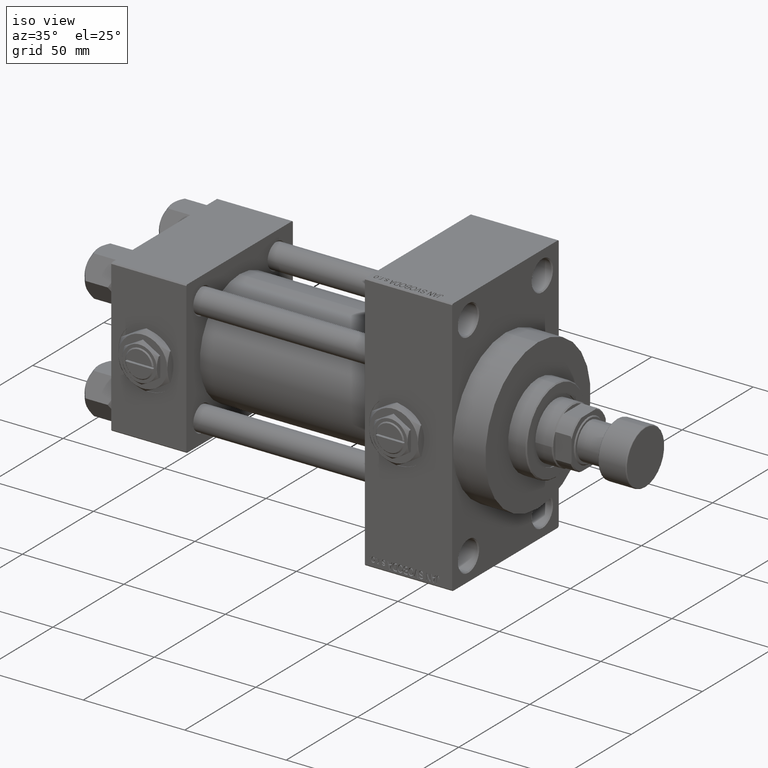
[diagram: clean part render]
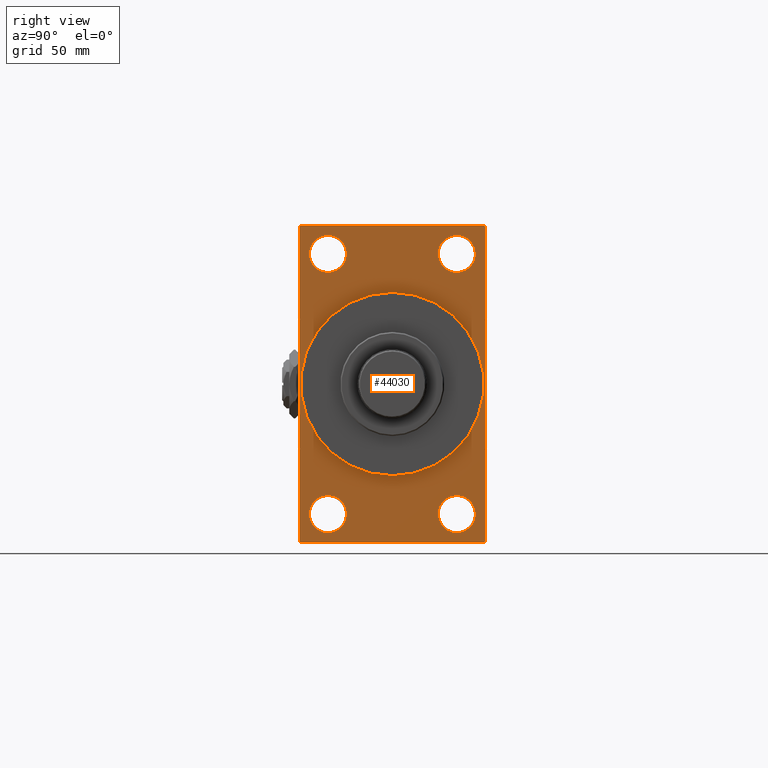
[diagram: tour spotlight — one face highlighted and labeled with its STEP entity id]
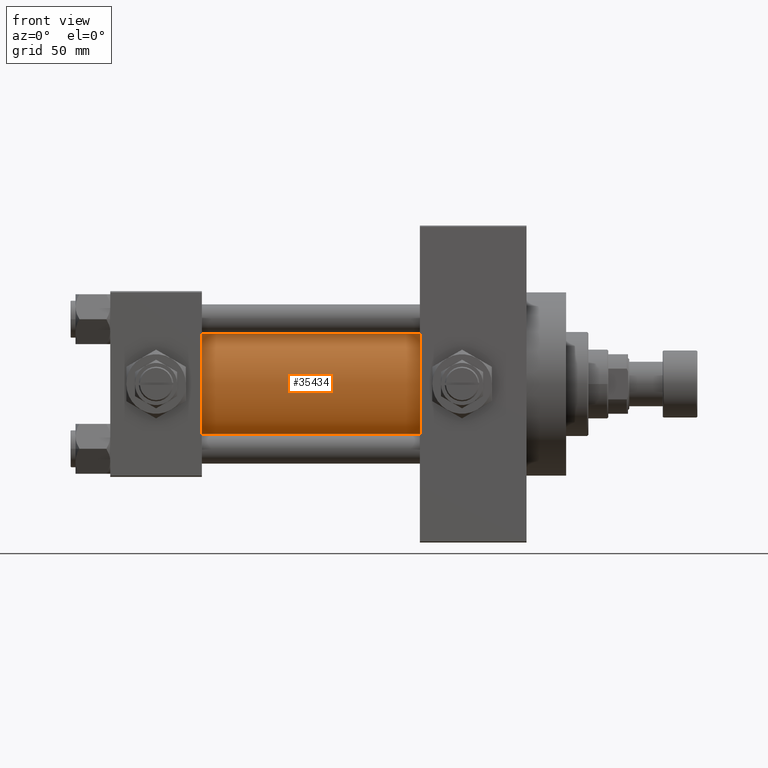
[diagram: tour spotlight — one face highlighted and labeled with its STEP entity id]
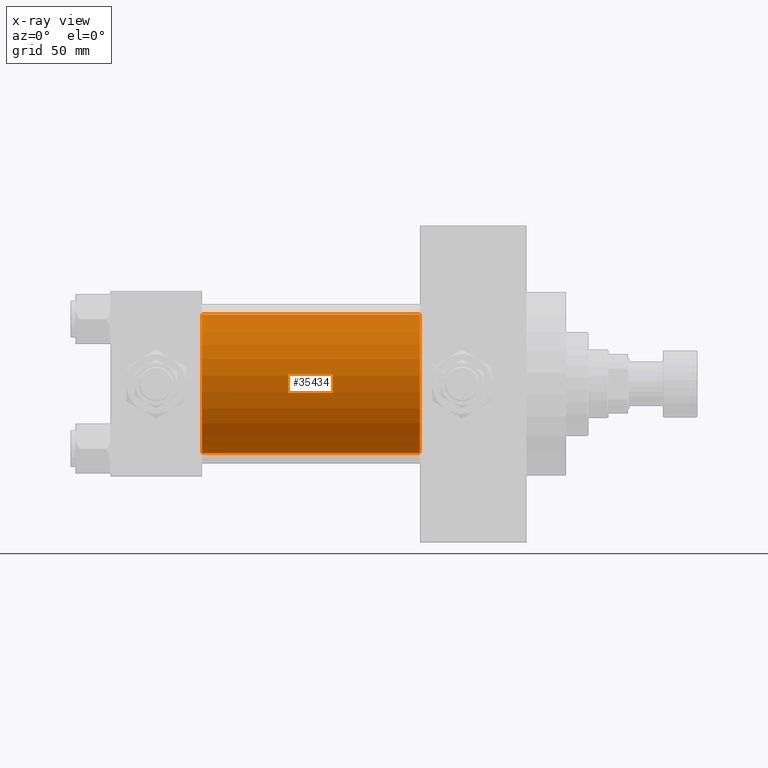
[diagram: x-ray of the same camera — body ghosted, this tour face saturated]
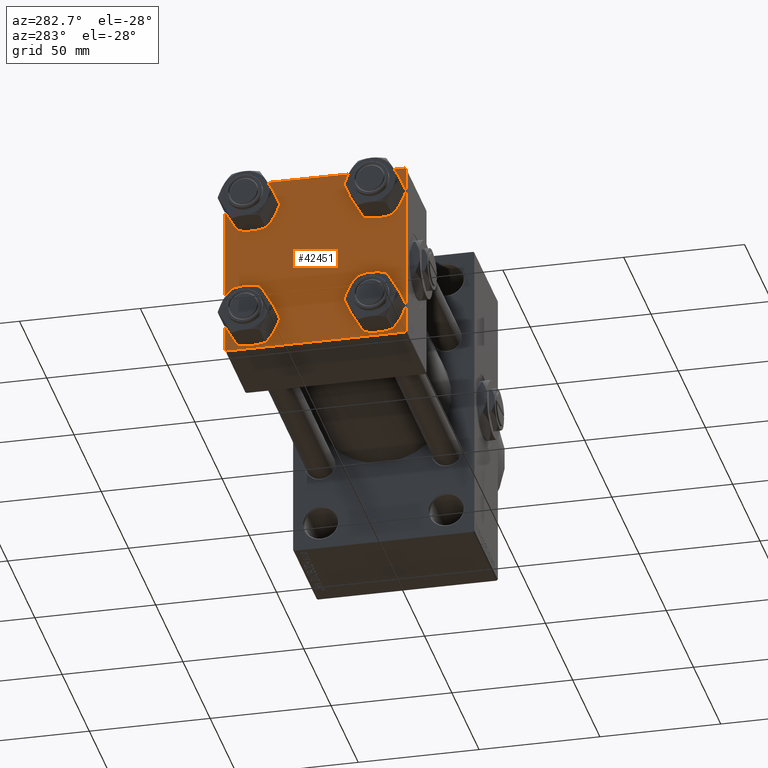
[diagram: tour spotlight — one face highlighted and labeled with its STEP entity id]
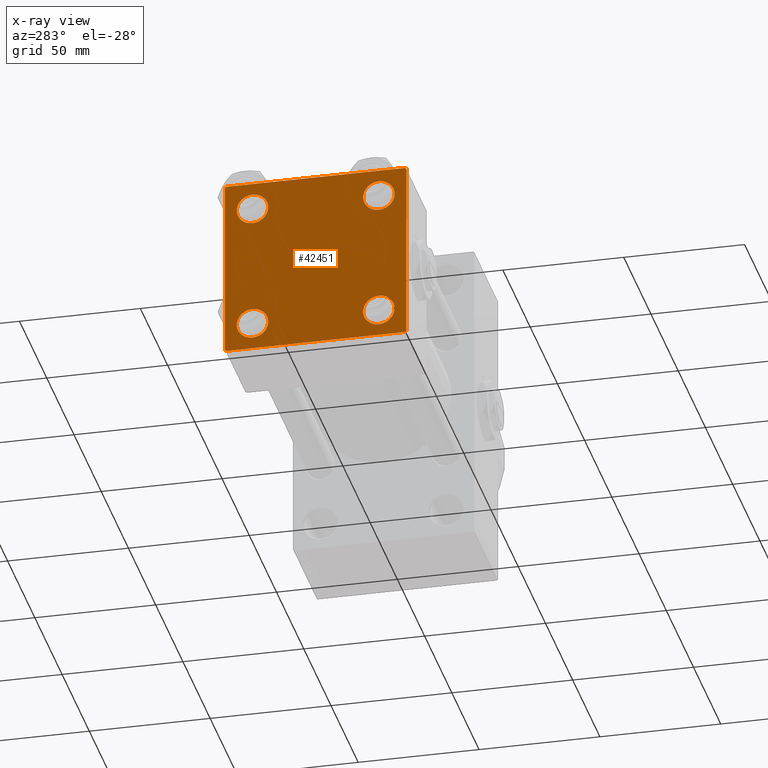
[diagram: x-ray of the same camera — body ghosted, this tour face saturated]
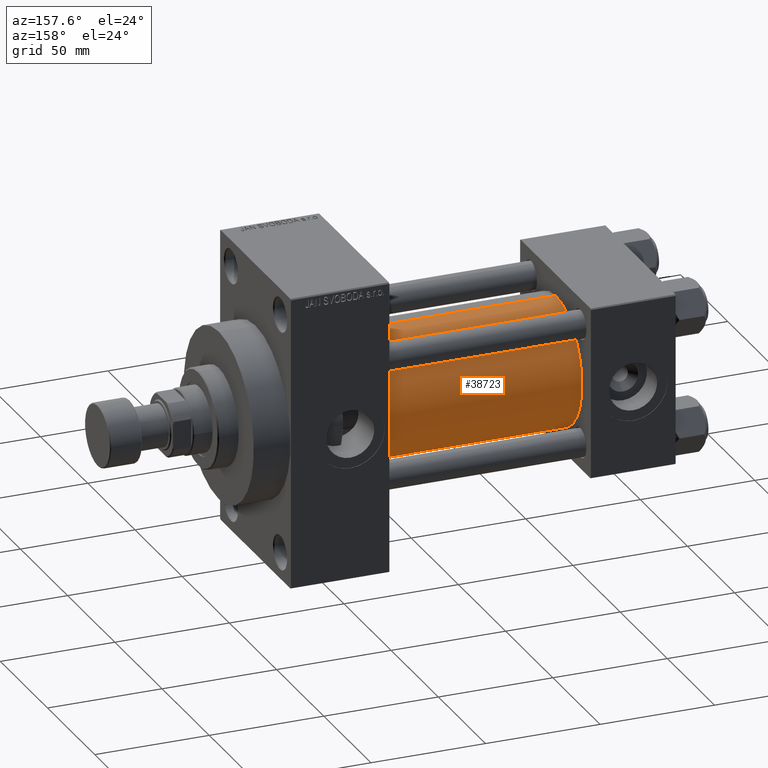
[diagram: tour spotlight — one face highlighted and labeled with its STEP entity id]
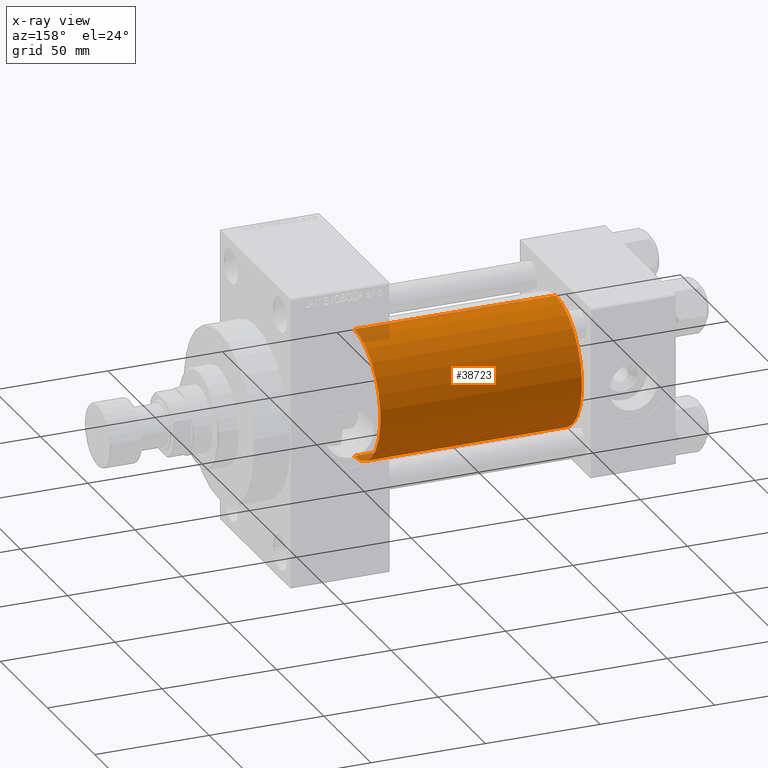
[diagram: x-ray of the same camera — body ghosted, this tour face saturated]
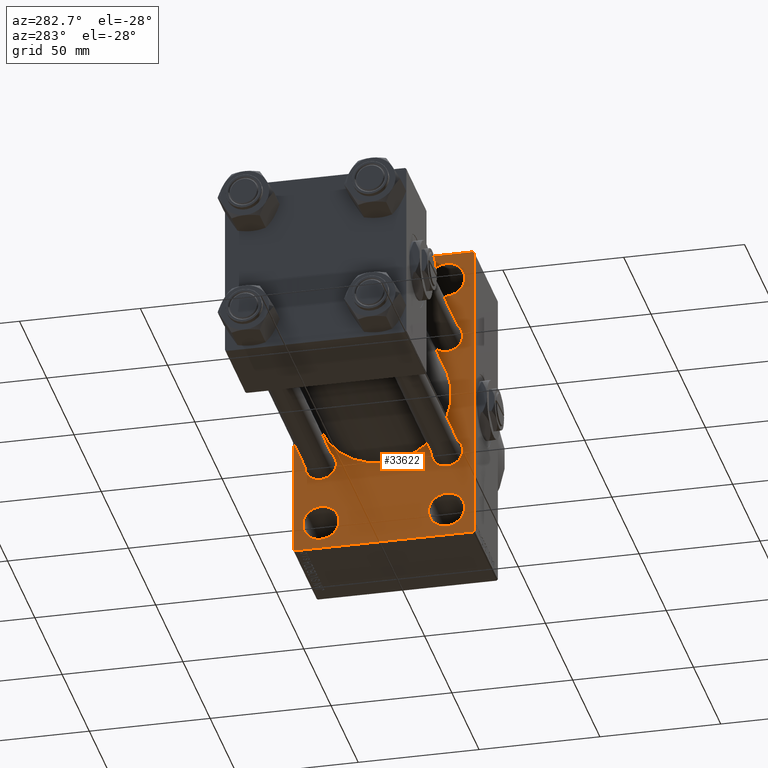
[diagram: tour spotlight — one face highlighted and labeled with its STEP entity id]
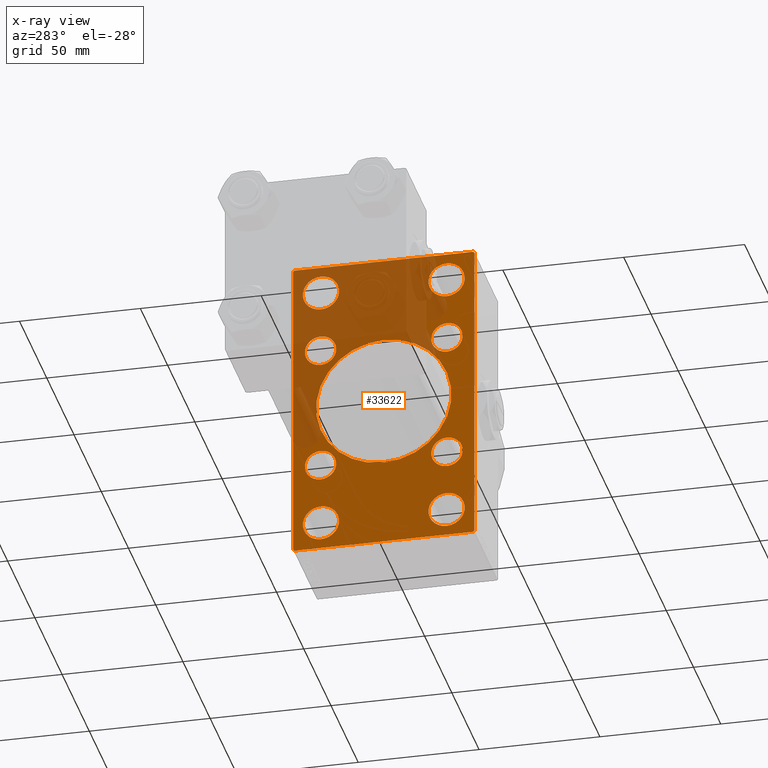
[diagram: x-ray of the same camera — body ghosted, this tour face saturated]
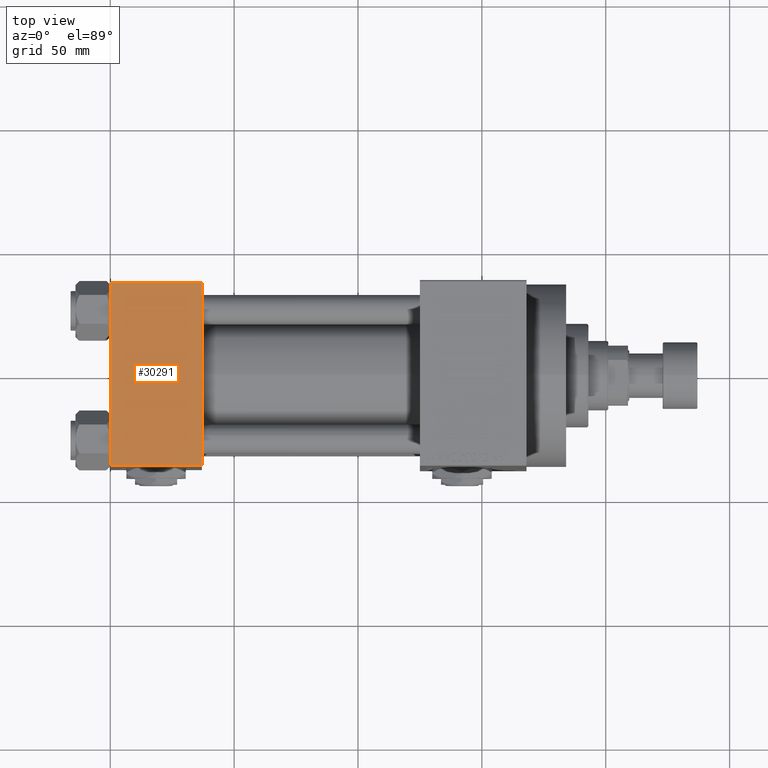
[diagram: tour spotlight — one face highlighted and labeled with its STEP entity id]
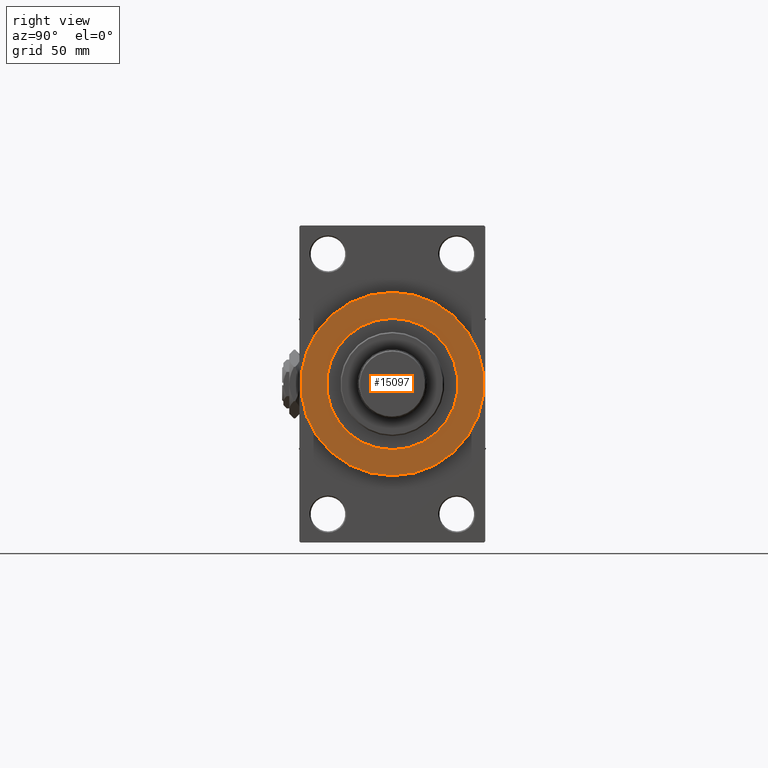
[diagram: tour spotlight — one face highlighted and labeled with its STEP entity id]
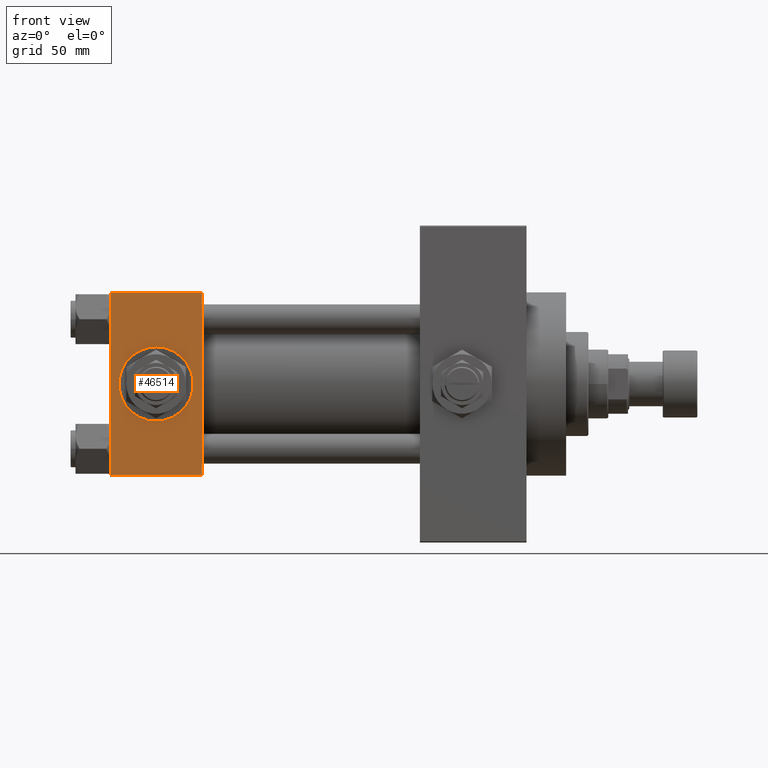
[diagram: tour spotlight — one face highlighted and labeled with its STEP entity id]
A machine part: a face-by-face anatomy tour. The part has 1219 B-rep faces; the first image is the clean iso view, then the 8 largest visible faces are spotlighted one at a time (largest first), each with its STEP entity span.

Face 1 — right view, entity #44030. In plain terms, the highlighted planar face has unit normal (-1, 0, 0).
Definition (entity closure, byte-faithful):
#114 = CARTESIAN_POINT ( 'NONE',  ( 167.9999999999999716, -25.99999999999999645, -60.00000000000000000 ) ) ;
#121 = EDGE_CURVE ( 'NONE', #3898, #1475, #34444, .T. ) ;
#252 = ORIENTED_EDGE ( 'NONE', *, *, #121, .T. ) ;
#253 = DIRECTION ( 'NONE',  ( -1.000000000000000000, 0.000000000000000000, -0.000000000000000000 ) ) ;
#314 = DIRECTION ( 'NONE',  ( 0.000000000000000000, 0.000000000000000000, 1.000000000000000000 ) ) ;
#596 = CARTESIAN_POINT ( 'NONE',  ( 167.9999999999999716, -25.99999999999999645, -52.49999999999999289 ) ) ;
#713 = CARTESIAN_POINT ( 'NONE',  ( 167.9999999999999716, 26.00000000000000000, -52.49999999999999289 ) ) ;
#756 = FACE_BOUND ( 'NONE', #25134, .T. ) ;
#795 = CARTESIAN_POINT ( 'NONE',  ( 167.9999999999999716, -37.49999999999999289, 63.50000000000000000 ) ) ;
#1308 = CARTESIAN_POINT ( 'NONE',  ( 167.9999999999999716, -25.99999999999999645, 44.99999999999999289 ) ) ;
#1475 = VERTEX_POINT ( 'NONE', #1308 ) ;
#1689 = DIRECTION ( 'NONE',  ( 0.000000000000000000, -5.421010862427522170E-17, -1.000000000000000000 ) ) ;
#1696 = LINE ( 'NONE', #14024, #11256 ) ;
#1888 = VERTEX_POINT ( 'NONE', #31376 ) ;
#2068 = AXIS2_PLACEMENT_3D ( 'NONE', #6374, #48870, #21469 ) ;
#2404 = VERTEX_POINT ( 'NONE', #22717 ) ;
#2488 = CARTESIAN_POINT ( 'NONE',  ( 167.9999999999999716, -25.99999999999999645, 52.50000000000000000 ) ) ;
#2493 = EDGE_CURVE ( 'NONE', #34848, #26606, #37594, .T. ) ;
#2833 = EDGE_CURVE ( 'NONE', #1888, #28734, #27155, .T. ) ;
#2987 = DIRECTION ( 'NONE',  ( 0.000000000000000000, 0.000000000000000000, 1.000000000000000000 ) ) ;
#3377 = CARTESIAN_POINT ( 'NONE',  ( 167.9999999999999716, -37.49999999999999289, 63.99999999999997158 ) ) ;
#3416 = DIRECTION ( 'NONE',  ( 0.000000000000000000, -0.7071067811865474617, 0.7071067811865474617 ) ) ;
#3775 = CARTESIAN_POINT ( 'NONE',  ( 167.9999999999999716, 26.00000000000000000, -52.49999999999999289 ) ) ;
#3861 = LINE ( 'NONE', #46135, #26767 ) ;
#3898 = VERTEX_POINT ( 'NONE', #24340 ) ;
#4331 = CARTESIAN_POINT ( 'NONE',  ( 167.9999999999999716, -25.99999999999999645, -52.49999999999999289 ) ) ;
#4421 = ORIENTED_EDGE ( 'NONE', *, *, #46496, .F. ) ;
#4575 = DIRECTION ( 'NONE',  ( -1.000000000000000000, 0.000000000000000000, -0.000000000000000000 ) ) ;
#4765 = FACE_BOUND ( 'NONE', #24611, .T. ) ;
#5276 = FACE_OUTER_BOUND ( 'NONE', #6876, .T. ) ;
#5448 = AXIS2_PLACEMENT_3D ( 'NONE', #3775, #253, #38988 ) ;
#5846 = VECTOR ( 'NONE', #3416, 1000.000000000000114 ) ;
#6318 = AXIS2_PLACEMENT_3D ( 'NONE', #44910, #18495, #33854 ) ;
#6374 = CARTESIAN_POINT ( 'NONE',  ( 167.9999999999999716, 0.000000000000000000, 0.000000000000000000 ) ) ;
#6688 = EDGE_CURVE ( 'NONE', #9812, #2404, #36947, .T. ) ;
#6876 = EDGE_LOOP ( 'NONE', ( #37733, #33366, #48726, #29204, #17965, #31352, #41427, #41784 ) ) ;
#7291 = ORIENTED_EDGE ( 'NONE', *, *, #2493, .T. ) ;
#8816 = CARTESIAN_POINT ( 'NONE',  ( 167.9999999999999716, 37.50000000000000000, 63.49999999999998579 ) ) ;
#9194 = LINE ( 'NONE', #40860, #22855 ) ;
#9392 = DIRECTION ( 'NONE',  ( 0.000000000000000000, 0.000000000000000000, 1.000000000000000000 ) ) ;
#9506 = DIRECTION ( 'NONE',  ( 0.000000000000000000, -1.000000000000000000, -1.850371707708594563E-16 ) ) ;
#9614 = AXIS2_PLACEMENT_3D ( 'NONE', #28157, #21086, #16814 ) ;
#9812 = VERTEX_POINT ( 'NONE', #12320 ) ;
#10127 = CARTESIAN_POINT ( 'NONE',  ( 167.9999999999999716, -37.00000000000001421, 63.99999999999997158 ) ) ;
#10131 = CIRCLE ( 'NONE', #2068, 37.00000000000000000 ) ;
#10329 = CIRCLE ( 'NONE', #11935, 7.500000000000007105 ) ;
#11256 = VECTOR ( 'NONE', #21071, 1000.000000000000000 ) ;
#11935 = AXIS2_PLACEMENT_3D ( 'NONE', #2488, #14067, #2987 ) ;
#12173 = VERTEX_POINT ( 'NONE', #795 ) ;
#12320 = CARTESIAN_POINT ( 'NONE',  ( 167.9999999999999716, 0.000000000000000000, 37.00000000000000000 ) ) ;
#12679 = CARTESIAN_POINT ( 'NONE',  ( 167.9999999999999716, 37.00000000000000000, 63.99999999999998579 ) ) ;
#13008 = CARTESIAN_POINT ( 'NONE',  ( 167.9999999999999716, 26.00000000000000000, 52.49999999999999289 ) ) ;
#13139 = VECTOR ( 'NONE', #9506, 1000.000000000000000 ) ;
#13526 = CARTESIAN_POINT ( 'NONE',  ( 167.9999999999999716, 37.50000000000000000, 63.99999999999998579 ) ) ;
#13877 = EDGE_CURVE ( 'NONE', #38773, #35646, #14683, .T. ) ;
#14024 = CARTESIAN_POINT ( 'NONE',  ( 167.9999999999999716, 37.49999999999999289, -64.00000000000000000 ) ) ;
#14067 = DIRECTION ( 'NONE',  ( -1.000000000000000000, 0.000000000000000000, -0.000000000000000000 ) ) ;
#14068 = EDGE_CURVE ( 'NONE', #39437, #37226, #41897, .T. ) ;
#14115 = VERTEX_POINT ( 'NONE', #34620 ) ;
#14683 = CIRCLE ( 'NONE', #33188, 7.500000000000007105 ) ;
#15692 = DIRECTION ( 'NONE',  ( 0.000000000000000000, 0.7071067811865573427, -0.7071067811865378028 ) ) ;
#15945 = DIRECTION ( 'NONE',  ( -1.000000000000000000, 0.000000000000000000, -0.000000000000000000 ) ) ;
#16602 = DIRECTION ( 'NONE',  ( -0.000000000000000000, 0.7071067811865376918, 0.7071067811865573427 ) ) ;
#16814 = DIRECTION ( 'NONE',  ( 0.000000000000000000, 0.000000000000000000, -1.000000000000000000 ) ) ;
#17965 = ORIENTED_EDGE ( 'NONE', *, *, #38427, .F. ) ;
#18495 = DIRECTION ( 'NONE',  ( -1.000000000000000000, 0.000000000000000000, -0.000000000000000000 ) ) ;
#19132 = DIRECTION ( 'NONE',  ( 0.000000000000000000, 0.000000000000000000, 1.000000000000000000 ) ) ;
#19366 = AXIS2_PLACEMENT_3D ( 'NONE', #26952, #38496, #19132 ) ;
#19635 = FACE_BOUND ( 'NONE', #30958, .T. ) ;
#20019 = CARTESIAN_POINT ( 'NONE',  ( 167.9999999999999716, -25.99999999999999645, -44.99999999999998579 ) ) ;
#20382 = LINE ( 'NONE', #47050, #46839 ) ;
#20656 = ORIENTED_EDGE ( 'NONE', *, *, #2833, .T. ) ;
#20812 = LINE ( 'NONE', #33145, #23651 ) ;
#21071 = DIRECTION ( 'NONE',  ( 0.000000000000000000, -1.000000000000000000, -1.850371707708594563E-16 ) ) ;
#21086 = DIRECTION ( 'NONE',  ( 1.000000000000000000, 0.000000000000000000, 0.000000000000000000 ) ) ;
#21469 = DIRECTION ( 'NONE',  ( 0.000000000000000000, 0.000000000000000000, -1.000000000000000000 ) ) ;
#22449 = CARTESIAN_POINT ( 'NONE',  ( 167.9999999999999716, 26.00000000000000000, -60.00000000000000000 ) ) ;
#22717 = CARTESIAN_POINT ( 'NONE',  ( 167.9999999999999716, 4.531193156845206793E-15, -37.00000000000000000 ) ) ;
#22788 = ORIENTED_EDGE ( 'NONE', *, *, #49015, .T. ) ;
#22855 = VECTOR ( 'NONE', #35866, 1000.000000000000000 ) ;
#23018 = CARTESIAN_POINT ( 'NONE',  ( 167.9999999999999716, -36.99999999999999289, -64.00000000000001421 ) ) ;
#23418 = DIRECTION ( 'NONE',  ( -1.000000000000000000, 0.000000000000000000, -0.000000000000000000 ) ) ;
#23651 = VECTOR ( 'NONE', #1689, 1000.000000000000000 ) ;
#23668 = FACE_BOUND ( 'NONE', #44724, .T. ) ;
#24340 = CARTESIAN_POINT ( 'NONE',  ( 167.9999999999999716, -25.99999999999999645, 60.00000000000000711 ) ) ;
#24611 = EDGE_LOOP ( 'NONE', ( #30380, #7291 ) ) ;
#24638 = VERTEX_POINT ( 'NONE', #37889 ) ;
#25134 = EDGE_LOOP ( 'NONE', ( #45428, #4421 ) ) ;
#26575 = CARTESIAN_POINT ( 'NONE',  ( 167.9999999999999716, 37.00000000000000000, 63.99999999999998579 ) ) ;
#26606 = VERTEX_POINT ( 'NONE', #114 ) ;
#26644 = EDGE_CURVE ( 'NONE', #26606, #34848, #36855, .T. ) ;
#26767 = VECTOR ( 'NONE', #15692, 1000.000000000000000 ) ;
#26952 = CARTESIAN_POINT ( 'NONE',  ( 167.9999999999999716, 26.00000000000000000, 52.49999999999999289 ) ) ;
#27155 = CIRCLE ( 'NONE', #5448, 7.500000000000007105 ) ;
#27419 = CIRCLE ( 'NONE', #19366, 7.500000000000007105 ) ;
#27869 = ORIENTED_EDGE ( 'NONE', *, *, #28300, .T. ) ;
#27895 = CARTESIAN_POINT ( 'NONE',  ( 167.9999999999999716, 26.00000000000000000, 44.99999999999998579 ) ) ;
#27902 = VERTEX_POINT ( 'NONE', #10127 ) ;
#27940 = AXIS2_PLACEMENT_3D ( 'NONE', #4331, #4575, #314 ) ;
#28157 = CARTESIAN_POINT ( 'NONE',  ( 167.9999999999999716, 0.000000000000000000, 0.000000000000000000 ) ) ;
#28287 = VECTOR ( 'NONE', #46139, 1000.000000000000000 ) ;
#28300 = EDGE_CURVE ( 'NONE', #28734, #1888, #39330, .T. ) ;
#28401 = EDGE_CURVE ( 'NONE', #24638, #37092, #1696, .T. ) ;
#28534 = AXIS2_PLACEMENT_3D ( 'NONE', #35967, #23418, #46302 ) ;
#28734 = VERTEX_POINT ( 'NONE', #22449 ) ;
#29204 = ORIENTED_EDGE ( 'NONE', *, *, #35547, .T. ) ;
#30380 = ORIENTED_EDGE ( 'NONE', *, *, #26644, .T. ) ;
#30958 = EDGE_LOOP ( 'NONE', ( #27869, #20656 ) ) ;
#31352 = ORIENTED_EDGE ( 'NONE', *, *, #14068, .T. ) ;
#31376 = CARTESIAN_POINT ( 'NONE',  ( 167.9999999999999716, 26.00000000000000000, -44.99999999999998579 ) ) ;
#31417 = DIRECTION ( 'NONE',  ( -1.000000000000000000, 0.000000000000000000, -0.000000000000000000 ) ) ;
#31842 = EDGE_CURVE ( 'NONE', #35646, #38773, #27419, .T. ) ;
#33092 = CARTESIAN_POINT ( 'NONE',  ( 167.9999999999999716, 26.00000000000000000, 60.00000000000000000 ) ) ;
#33145 = CARTESIAN_POINT ( 'NONE',  ( 167.9999999999999716, 37.50000000000000000, 63.99999999999998579 ) ) ;
#33188 = AXIS2_PLACEMENT_3D ( 'NONE', #13008, #36407, #39684 ) ;
#33366 = ORIENTED_EDGE ( 'NONE', *, *, #38936, .T. ) ;
#33671 = VERTEX_POINT ( 'NONE', #36424 ) ;
#33854 = DIRECTION ( 'NONE',  ( 0.000000000000000000, 0.000000000000000000, 1.000000000000000000 ) ) ;
#34173 = EDGE_CURVE ( 'NONE', #12173, #14115, #34328, .T. ) ;
#34328 = LINE ( 'NONE', #3377, #28287 ) ;
#34444 = CIRCLE ( 'NONE', #6318, 7.500000000000007105 ) ;
#34538 = AXIS2_PLACEMENT_3D ( 'NONE', #713, #31417, #42976 ) ;
#34620 = CARTESIAN_POINT ( 'NONE',  ( 167.9999999999999716, -37.49999999999999289, -63.50000000000002842 ) ) ;
#34848 = VERTEX_POINT ( 'NONE', #20019 ) ;
#35394 = ORIENTED_EDGE ( 'NONE', *, *, #13877, .T. ) ;
#35454 = LINE ( 'NONE', #13526, #13139 ) ;
#35547 = EDGE_CURVE ( 'NONE', #24638, #33671, #20382, .T. ) ;
#35646 = VERTEX_POINT ( 'NONE', #27895 ) ;
#35734 = FACE_BOUND ( 'NONE', #43557, .T. ) ;
#35866 = DIRECTION ( 'NONE',  ( -0.000000000000000000, -0.7071067811865524577, -0.7071067811865426878 ) ) ;
#35967 = CARTESIAN_POINT ( 'NONE',  ( 167.9999999999999716, 0.000000000000000000, 0.000000000000000000 ) ) ;
#36407 = DIRECTION ( 'NONE',  ( -1.000000000000000000, 0.000000000000000000, -0.000000000000000000 ) ) ;
#36424 = CARTESIAN_POINT ( 'NONE',  ( 167.9999999999999716, 37.49999999999999289, -63.50000000000001421 ) ) ;
#36529 = EDGE_CURVE ( 'NONE', #37226, #27902, #35454, .T. ) ;
#36855 = CIRCLE ( 'NONE', #37684, 7.500000000000007105 ) ;
#36947 = CIRCLE ( 'NONE', #9614, 37.00000000000000000 ) ;
#37092 = VERTEX_POINT ( 'NONE', #23018 ) ;
#37226 = VERTEX_POINT ( 'NONE', #12679 ) ;
#37594 = CIRCLE ( 'NONE', #27940, 7.500000000000007105 ) ;
#37684 = AXIS2_PLACEMENT_3D ( 'NONE', #596, #15945, #9392 ) ;
#37733 = ORIENTED_EDGE ( 'NONE', *, *, #34173, .T. ) ;
#37889 = CARTESIAN_POINT ( 'NONE',  ( 167.9999999999999716, 37.00000000000002132, -64.00000000000000000 ) ) ;
#38427 = EDGE_CURVE ( 'NONE', #39437, #33671, #20812, .T. ) ;
#38496 = DIRECTION ( 'NONE',  ( -1.000000000000000000, 0.000000000000000000, -0.000000000000000000 ) ) ;
#38646 = EDGE_CURVE ( 'NONE', #27902, #12173, #9194, .T. ) ;
#38773 = VERTEX_POINT ( 'NONE', #33092 ) ;
#38936 = EDGE_CURVE ( 'NONE', #14115, #37092, #3861, .T. ) ;
#38988 = DIRECTION ( 'NONE',  ( 0.000000000000000000, 0.000000000000000000, 1.000000000000000000 ) ) ;
#39330 = CIRCLE ( 'NONE', #34538, 7.500000000000007105 ) ;
#39437 = VERTEX_POINT ( 'NONE', #8816 ) ;
#39684 = DIRECTION ( 'NONE',  ( 0.000000000000000000, 0.000000000000000000, 1.000000000000000000 ) ) ;
#40860 = CARTESIAN_POINT ( 'NONE',  ( 167.9999999999999716, -37.49999999999999289, 63.50000000000000000 ) ) ;
#41427 = ORIENTED_EDGE ( 'NONE', *, *, #36529, .T. ) ;
#41784 = ORIENTED_EDGE ( 'NONE', *, *, #38646, .T. ) ;
#41897 = LINE ( 'NONE', #26575, #5846 ) ;
#42976 = DIRECTION ( 'NONE',  ( 0.000000000000000000, 0.000000000000000000, 1.000000000000000000 ) ) ;
#43557 = EDGE_LOOP ( 'NONE', ( #22788, #252 ) ) ;
#44030 = ADVANCED_FACE ( 'NONE', ( #35734, #4765, #19635, #23668, #756, #5276 ), #46794, .F. ) ;
#44724 = EDGE_LOOP ( 'NONE', ( #45504, #35394 ) ) ;
#44910 = CARTESIAN_POINT ( 'NONE',  ( 167.9999999999999716, -25.99999999999999645, 52.50000000000000000 ) ) ;
#45428 = ORIENTED_EDGE ( 'NONE', *, *, #6688, .F. ) ;
#45504 = ORIENTED_EDGE ( 'NONE', *, *, #31842, .T. ) ;
#46135 = CARTESIAN_POINT ( 'NONE',  ( 167.9999999999999716, -36.99999999999999289, -64.00000000000001421 ) ) ;
#46139 = DIRECTION ( 'NONE',  ( 0.000000000000000000, 0.000000000000000000, -1.000000000000000000 ) ) ;
#46302 = DIRECTION ( 'NONE',  ( -0.000000000000000000, 0.000000000000000000, 1.000000000000000000 ) ) ;
#46496 = EDGE_CURVE ( 'NONE', #2404, #9812, #10131, .T. ) ;
#46794 = PLANE ( 'NONE',  #28534 ) ;
#46839 = VECTOR ( 'NONE', #16602, 1000.000000000000114 ) ;
#47050 = CARTESIAN_POINT ( 'NONE',  ( 167.9999999999999716, 37.49999999999999289, -63.50000000000001421 ) ) ;
#48726 = ORIENTED_EDGE ( 'NONE', *, *, #28401, .F. ) ;
#48870 = DIRECTION ( 'NONE',  ( 1.000000000000000000, 0.000000000000000000, 0.000000000000000000 ) ) ;
#49015 = EDGE_CURVE ( 'NONE', #1475, #3898, #10329, .T. ) ;

Face 2 — front view, entity #35434. An x-ray twin of the same camera follows (body ghosted, this face saturated) — the face is partly hidden behind the body. In plain terms, the highlighted cylindrical surface (partial cylindrical patch) has radius 28 mm, axis along (-1, -0, -0).
Definition (entity closure, byte-faithful):
#373 = CARTESIAN_POINT ( 'NONE',  ( 37.00000000000000711, 8.269258236473784371E-16, -28.00000000000000000 ) ) ;
#453 = EDGE_CURVE ( 'NONE', #25900, #24039, #15159, .T. ) ;
#675 = CARTESIAN_POINT ( 'NONE',  ( 125.0000000000000000, -2.602085213965210642E-15, 28.00000000000000000 ) ) ;
#2340 = CARTESIAN_POINT ( 'NONE',  ( 37.00000000000000711, -2.602085213965210642E-15, 0.000000000000000000 ) ) ;
#2427 = EDGE_LOOP ( 'NONE', ( #23657, #34106, #33567, #31995 ) ) ;
#2472 = CARTESIAN_POINT ( 'NONE',  ( 125.0000000000000000, 8.269258236473784371E-16, -28.00000000000000000 ) ) ;
#2849 = DIRECTION ( 'NONE',  ( 1.000000000000000000, -0.000000000000000000, 0.000000000000000000 ) ) ;
#3082 = AXIS2_PLACEMENT_3D ( 'NONE', #2340, #2849, #29782 ) ;
#3117 = CARTESIAN_POINT ( 'NONE',  ( 125.0000000000000000, -2.602085213965210642E-15, 0.000000000000000000 ) ) ;
#3366 = DIRECTION ( 'NONE',  ( 0.000000000000000000, 0.000000000000000000, -1.000000000000000000 ) ) ;
#3420 = DIRECTION ( 'NONE',  ( -1.000000000000000000, -0.000000000000000000, -0.000000000000000000 ) ) ;
#4685 = LINE ( 'NONE', #675, #46322 ) ;
#4773 = DIRECTION ( 'NONE',  ( -1.000000000000000000, -0.000000000000000000, -0.000000000000000000 ) ) ;
#7969 = AXIS2_PLACEMENT_3D ( 'NONE', #3117, #10928, #3366 ) ;
#8283 = CARTESIAN_POINT ( 'NONE',  ( 125.0000000000000000, -2.602085213965210642E-15, 28.00000000000000000 ) ) ;
#9304 = CYLINDRICAL_SURFACE ( 'NONE', #12288, 28.00000000000000000 ) ;
#10006 = VERTEX_POINT ( 'NONE', #2472 ) ;
#10928 = DIRECTION ( 'NONE',  ( 1.000000000000000000, 0.000000000000000000, 0.000000000000000000 ) ) ;
#12288 = AXIS2_PLACEMENT_3D ( 'NONE', #17095, #4773, #21123 ) ;
#14753 = LINE ( 'NONE', #45931, #47345 ) ;
#15159 = CIRCLE ( 'NONE', #3082, 28.00000000000000000 ) ;
#17095 = CARTESIAN_POINT ( 'NONE',  ( 125.0000000000000000, -2.602085213965210642E-15, 0.000000000000000000 ) ) ;
#21123 = DIRECTION ( 'NONE',  ( 0.000000000000000000, 0.000000000000000000, 1.000000000000000000 ) ) ;
#23657 = ORIENTED_EDGE ( 'NONE', *, *, #24644, .F. ) ;
#24039 = VERTEX_POINT ( 'NONE', #373 ) ;
#24644 = EDGE_CURVE ( 'NONE', #10006, #24039, #14753, .T. ) ;
#25900 = VERTEX_POINT ( 'NONE', #47124 ) ;
#27594 = EDGE_CURVE ( 'NONE', #30142, #10006, #49740, .T. ) ;
#28191 = FACE_OUTER_BOUND ( 'NONE', #2427, .T. ) ;
#29782 = DIRECTION ( 'NONE',  ( 0.000000000000000000, 0.000000000000000000, 1.000000000000000000 ) ) ;
#30142 = VERTEX_POINT ( 'NONE', #8283 ) ;
#31995 = ORIENTED_EDGE ( 'NONE', *, *, #453, .T. ) ;
#33567 = ORIENTED_EDGE ( 'NONE', *, *, #46911, .T. ) ;
#34106 = ORIENTED_EDGE ( 'NONE', *, *, #27594, .F. ) ;
#35434 = ADVANCED_FACE ( 'NONE', ( #28191 ), #9304, .T. ) ;
#45931 = CARTESIAN_POINT ( 'NONE',  ( 125.0000000000000000, 8.269258236473784371E-16, -28.00000000000000000 ) ) ;
#46230 = DIRECTION ( 'NONE',  ( -1.000000000000000000, -0.000000000000000000, -0.000000000000000000 ) ) ;
#46322 = VECTOR ( 'NONE', #46230, 1000.000000000000000 ) ;
#46911 = EDGE_CURVE ( 'NONE', #30142, #25900, #4685, .T. ) ;
#47124 = CARTESIAN_POINT ( 'NONE',  ( 37.00000000000000711, -2.602085213965210642E-15, 28.00000000000000000 ) ) ;
#47345 = VECTOR ( 'NONE', #3420, 1000.000000000000000 ) ;
#49740 = CIRCLE ( 'NONE', #7969, 28.00000000000000000 ) ;

Face 3 — auxiliary view, entity #42451. An x-ray twin of the same camera follows (body ghosted, this face saturated) — the face is partly hidden behind the body. In plain terms, the highlighted planar face has unit normal (-1, 0, 0).
Definition (entity closure, byte-faithful):
#45 = FACE_BOUND ( 'NONE', #42546, .T. ) ;
#285 = DIRECTION ( 'NONE',  ( -1.000000000000000000, 0.000000000000000000, -0.000000000000000000 ) ) ;
#524 = PLANE ( 'NONE',  #7619 ) ;
#610 = DIRECTION ( 'NONE',  ( 1.000000000000000000, -0.000000000000000000, 0.000000000000000000 ) ) ;
#753 = CARTESIAN_POINT ( 'NONE',  ( 0.000000000000000000, 37.49999999999999289, -37.50000000000000000 ) ) ;
#980 = DIRECTION ( 'NONE',  ( 0.000000000000000000, 0.000000000000000000, 1.000000000000000000 ) ) ;
#1423 = LINE ( 'NONE', #43193, #15954 ) ;
#2079 = ORIENTED_EDGE ( 'NONE', *, *, #7044, .F. ) ;
#2616 = EDGE_CURVE ( 'NONE', #10533, #22480, #39800, .T. ) ;
#3120 = ORIENTED_EDGE ( 'NONE', *, *, #15320, .T. ) ;
#3317 = CARTESIAN_POINT ( 'NONE',  ( 0.000000000000000000, 36.99999999999999289, 37.50000000000000000 ) ) ;
#3564 = FACE_OUTER_BOUND ( 'NONE', #49283, .T. ) ;
#3683 = EDGE_CURVE ( 'NONE', #43683, #22324, #25145, .T. ) ;
#3859 = DIRECTION ( 'NONE',  ( 1.000000000000000000, -0.000000000000000000, 0.000000000000000000 ) ) ;
#4244 = DIRECTION ( 'NONE',  ( 1.000000000000000000, -0.000000000000000000, 0.000000000000000000 ) ) ;
#5690 = CARTESIAN_POINT ( 'NONE',  ( 0.000000000000000000, -26.14999999999999147, -19.64999999999999503 ) ) ;
#5965 = CARTESIAN_POINT ( 'NONE',  ( 0.000000000000000000, -26.14999999999999147, -26.15000000000000924 ) ) ;
#6642 = CARTESIAN_POINT ( 'NONE',  ( 0.000000000000000000, -26.14999999999999147, 26.15000000000000924 ) ) ;
#6669 = VECTOR ( 'NONE', #34986, 1000.000000000000000 ) ;
#7044 = EDGE_CURVE ( 'NONE', #39134, #35335, #20771, .T. ) ;
#7522 = LINE ( 'NONE', #30422, #9638 ) ;
#7619 = AXIS2_PLACEMENT_3D ( 'NONE', #46078, #285, #42296 ) ;
#7966 = VERTEX_POINT ( 'NONE', #22196 ) ;
#8226 = EDGE_CURVE ( 'NONE', #29483, #46837, #17730, .T. ) ;
#9530 = CARTESIAN_POINT ( 'NONE',  ( 0.000000000000000000, -37.50000000000000711, 37.49999999999999289 ) ) ;
#9629 = DIRECTION ( 'NONE',  ( -0.000000000000000000, -0.7071067811865474617, -0.7071067811865474617 ) ) ;
#9638 = VECTOR ( 'NONE', #38214, 1000.000000000000114 ) ;
#9668 = CIRCLE ( 'NONE', #49022, 6.500000000000015987 ) ;
#9743 = DIRECTION ( 'NONE',  ( 1.000000000000000000, -0.000000000000000000, 0.000000000000000000 ) ) ;
#9883 = CARTESIAN_POINT ( 'NONE',  ( 0.000000000000000000, 37.24999999999998579, -37.24999999999998579 ) ) ;
#10533 = VERTEX_POINT ( 'NONE', #17527 ) ;
#10749 = CIRCLE ( 'NONE', #38858, 6.500000000000015987 ) ;
#11058 = EDGE_CURVE ( 'NONE', #22480, #28588, #36790, .T. ) ;
#12528 = EDGE_CURVE ( 'NONE', #41841, #38609, #35553, .T. ) ;
#13062 = DIRECTION ( 'NONE',  ( 0.000000000000000000, 9.251858538542971581E-17, -1.000000000000000000 ) ) ;
#13470 = DIRECTION ( 'NONE',  ( 0.000000000000000000, -1.000000000000000000, -9.251858538542971581E-17 ) ) ;
#13892 = AXIS2_PLACEMENT_3D ( 'NONE', #44451, #9743, #25594 ) ;
#13935 = DIRECTION ( 'NONE',  ( 1.000000000000000000, -0.000000000000000000, 0.000000000000000000 ) ) ;
#14065 = ORIENTED_EDGE ( 'NONE', *, *, #49302, .T. ) ;
#15320 = EDGE_CURVE ( 'NONE', #27436, #15996, #42751, .T. ) ;
#15335 = DIRECTION ( 'NONE',  ( 0.000000000000000000, 0.000000000000000000, 1.000000000000000000 ) ) ;
#15954 = VECTOR ( 'NONE', #35665, 1000.000000000000000 ) ;
#15996 = VERTEX_POINT ( 'NONE', #45378 ) ;
#17121 = CARTESIAN_POINT ( 'NONE',  ( 0.000000000000000000, -37.00000000000002132, -37.50000000000000711 ) ) ;
#17251 = CARTESIAN_POINT ( 'NONE',  ( 0.000000000000000000, 37.49999999999999289, 37.50000000000000000 ) ) ;
#17387 = CARTESIAN_POINT ( 'NONE',  ( 0.000000000000000000, 37.49999999999999289, 37.50000000000000000 ) ) ;
#17527 = CARTESIAN_POINT ( 'NONE',  ( 0.000000000000000000, 37.49999999999999289, 37.00000000000000000 ) ) ;
#17578 = EDGE_CURVE ( 'NONE', #28588, #36257, #18892, .T. ) ;
#17730 = CIRCLE ( 'NONE', #48253, 6.500000000000023093 ) ;
#18488 = VECTOR ( 'NONE', #13470, 1000.000000000000000 ) ;
#18761 = EDGE_CURVE ( 'NONE', #40763, #7966, #23593, .T. ) ;
#18892 = LINE ( 'NONE', #753, #6669 ) ;
#19657 = LINE ( 'NONE', #28885, #48911 ) ;
#19811 = CIRCLE ( 'NONE', #38316, 6.500000000000023093 ) ;
#20771 = LINE ( 'NONE', #17251, #18488 ) ;
#20914 = CARTESIAN_POINT ( 'NONE',  ( 0.000000000000000000, -26.14999999999999147, 32.65000000000003411 ) ) ;
#21113 = ORIENTED_EDGE ( 'NONE', *, *, #17578, .T. ) ;
#21975 = AXIS2_PLACEMENT_3D ( 'NONE', #5965, #40664, #45189 ) ;
#22196 = CARTESIAN_POINT ( 'NONE',  ( 0.000000000000000000, -26.14999999999999147, -32.65000000000002700 ) ) ;
#22324 = VERTEX_POINT ( 'NONE', #40761 ) ;
#22480 = VERTEX_POINT ( 'NONE', #42492 ) ;
#22686 = FACE_BOUND ( 'NONE', #30178, .T. ) ;
#23271 = CARTESIAN_POINT ( 'NONE',  ( 0.000000000000000000, 26.14999999999999858, -26.15000000000000213 ) ) ;
#23483 = AXIS2_PLACEMENT_3D ( 'NONE', #34078, #3859, #49409 ) ;
#23593 = CIRCLE ( 'NONE', #21975, 6.500000000000015987 ) ;
#24864 = DIRECTION ( 'NONE',  ( 0.000000000000000000, 0.7071067811865474617, -0.7071067811865474617 ) ) ;
#25145 = LINE ( 'NONE', #9530, #42427 ) ;
#25220 = EDGE_CURVE ( 'NONE', #43683, #35335, #7522, .T. ) ;
#25594 = DIRECTION ( 'NONE',  ( 0.000000000000000000, 0.000000000000000000, 1.000000000000000000 ) ) ;
#25865 = VECTOR ( 'NONE', #9629, 1000.000000000000114 ) ;
#26135 = EDGE_CURVE ( 'NONE', #39134, #10533, #19657, .T. ) ;
#26721 = FACE_BOUND ( 'NONE', #36568, .T. ) ;
#26832 = CARTESIAN_POINT ( 'NONE',  ( 0.000000000000000000, 26.14999999999999858, -32.65000000000001990 ) ) ;
#27436 = VERTEX_POINT ( 'NONE', #26832 ) ;
#27842 = CARTESIAN_POINT ( 'NONE',  ( 0.000000000000000000, -26.14999999999999147, 19.64999999999999147 ) ) ;
#28193 = ORIENTED_EDGE ( 'NONE', *, *, #3683, .F. ) ;
#28588 = VERTEX_POINT ( 'NONE', #34386 ) ;
#28850 = ORIENTED_EDGE ( 'NONE', *, *, #18761, .T. ) ;
#28885 = CARTESIAN_POINT ( 'NONE',  ( 0.000000000000000000, 37.24999999999999289, 37.24999999999999289 ) ) ;
#29304 = DIRECTION ( 'NONE',  ( 0.000000000000000000, 0.000000000000000000, 1.000000000000000000 ) ) ;
#29483 = VERTEX_POINT ( 'NONE', #27842 ) ;
#29944 = EDGE_CURVE ( 'NONE', #7966, #40763, #9668, .T. ) ;
#30178 = EDGE_LOOP ( 'NONE', ( #31663, #35760 ) ) ;
#30422 = CARTESIAN_POINT ( 'NONE',  ( -0.000000000000000000, -37.25000000000000000, 37.25000000000000000 ) ) ;
#30949 = CARTESIAN_POINT ( 'NONE',  ( 0.000000000000000000, 26.14999999999999858, 26.15000000000000213 ) ) ;
#31663 = ORIENTED_EDGE ( 'NONE', *, *, #12528, .T. ) ;
#32504 = DIRECTION ( 'NONE',  ( 1.000000000000000000, -0.000000000000000000, 0.000000000000000000 ) ) ;
#32994 = CARTESIAN_POINT ( 'NONE',  ( 0.000000000000000000, -26.14999999999999147, -26.15000000000000924 ) ) ;
#33143 = AXIS2_PLACEMENT_3D ( 'NONE', #30949, #34965, #980 ) ;
#34078 = CARTESIAN_POINT ( 'NONE',  ( 0.000000000000000000, 26.14999999999999858, -26.15000000000000213 ) ) ;
#34386 = CARTESIAN_POINT ( 'NONE',  ( 0.000000000000000000, 36.99999999999997868, -37.50000000000000000 ) ) ;
#34965 = DIRECTION ( 'NONE',  ( 1.000000000000000000, -0.000000000000000000, 0.000000000000000000 ) ) ;
#34986 = DIRECTION ( 'NONE',  ( 0.000000000000000000, -1.000000000000000000, -9.251858538542972814E-17 ) ) ;
#35335 = VERTEX_POINT ( 'NONE', #48374 ) ;
#35479 = ORIENTED_EDGE ( 'NONE', *, *, #29944, .T. ) ;
#35553 = CIRCLE ( 'NONE', #33143, 6.500000000000023093 ) ;
#35665 = DIRECTION ( 'NONE',  ( 0.000000000000000000, -0.7071067811865524577, 0.7071067811865426878 ) ) ;
#35760 = ORIENTED_EDGE ( 'NONE', *, *, #38377, .T. ) ;
#36257 = VERTEX_POINT ( 'NONE', #17121 ) ;
#36365 = CARTESIAN_POINT ( 'NONE',  ( 0.000000000000000000, 26.14999999999999858, 19.64999999999998437 ) ) ;
#36568 = EDGE_LOOP ( 'NONE', ( #43180, #3120 ) ) ;
#36790 = LINE ( 'NONE', #9883, #25865 ) ;
#37178 = CARTESIAN_POINT ( 'NONE',  ( 0.000000000000000000, -37.50000000000000711, 36.99999999999999289 ) ) ;
#37979 = EDGE_CURVE ( 'NONE', #15996, #27436, #10749, .T. ) ;
#38056 = ORIENTED_EDGE ( 'NONE', *, *, #11058, .T. ) ;
#38065 = ORIENTED_EDGE ( 'NONE', *, *, #48440, .T. ) ;
#38214 = DIRECTION ( 'NONE',  ( -0.000000000000000000, 0.7071067811865474617, 0.7071067811865474617 ) ) ;
#38316 = AXIS2_PLACEMENT_3D ( 'NONE', #6642, #13935, #29304 ) ;
#38377 = EDGE_CURVE ( 'NONE', #38609, #41841, #44530, .T. ) ;
#38603 = DIRECTION ( 'NONE',  ( 0.000000000000000000, 0.000000000000000000, 1.000000000000000000 ) ) ;
#38609 = VERTEX_POINT ( 'NONE', #36365 ) ;
#38858 = AXIS2_PLACEMENT_3D ( 'NONE', #23271, #610, #38603 ) ;
#39019 = FACE_BOUND ( 'NONE', #46579, .T. ) ;
#39134 = VERTEX_POINT ( 'NONE', #3317 ) ;
#39800 = LINE ( 'NONE', #17387, #47207 ) ;
#40664 = DIRECTION ( 'NONE',  ( 1.000000000000000000, -0.000000000000000000, 0.000000000000000000 ) ) ;
#40761 = CARTESIAN_POINT ( 'NONE',  ( 0.000000000000000000, -37.50000000000000000, -37.00000000000003553 ) ) ;
#40763 = VERTEX_POINT ( 'NONE', #5690 ) ;
#41275 = ORIENTED_EDGE ( 'NONE', *, *, #8226, .T. ) ;
#41841 = VERTEX_POINT ( 'NONE', #45014 ) ;
#42296 = DIRECTION ( 'NONE',  ( -0.000000000000000000, 0.000000000000000000, 1.000000000000000000 ) ) ;
#42427 = VECTOR ( 'NONE', #13062, 1000.000000000000000 ) ;
#42451 = ADVANCED_FACE ( 'NONE', ( #39019, #45, #26721, #22686, #3564 ), #524, .T. ) ;
#42492 = CARTESIAN_POINT ( 'NONE',  ( 0.000000000000000000, 37.49999999999999289, -36.99999999999998579 ) ) ;
#42546 = EDGE_LOOP ( 'NONE', ( #28850, #35479 ) ) ;
#42751 = CIRCLE ( 'NONE', #23483, 6.500000000000015987 ) ;
#43180 = ORIENTED_EDGE ( 'NONE', *, *, #37979, .T. ) ;
#43193 = CARTESIAN_POINT ( 'NONE',  ( 0.000000000000000000, -37.24999999999975842, -37.25000000000027001 ) ) ;
#43221 = CARTESIAN_POINT ( 'NONE',  ( 0.000000000000000000, -26.14999999999999147, 26.15000000000000924 ) ) ;
#43683 = VERTEX_POINT ( 'NONE', #37178 ) ;
#44293 = DIRECTION ( 'NONE',  ( 0.000000000000000000, 0.000000000000000000, 1.000000000000000000 ) ) ;
#44451 = CARTESIAN_POINT ( 'NONE',  ( 0.000000000000000000, 26.14999999999999858, 26.15000000000000213 ) ) ;
#44530 = CIRCLE ( 'NONE', #13892, 6.500000000000023093 ) ;
#45014 = CARTESIAN_POINT ( 'NONE',  ( 0.000000000000000000, 26.14999999999999858, 32.65000000000002700 ) ) ;
#45189 = DIRECTION ( 'NONE',  ( 0.000000000000000000, 0.000000000000000000, 1.000000000000000000 ) ) ;
#45231 = ORIENTED_EDGE ( 'NONE', *, *, #25220, .T. ) ;
#45310 = ORIENTED_EDGE ( 'NONE', *, *, #2616, .T. ) ;
#45378 = CARTESIAN_POINT ( 'NONE',  ( 0.000000000000000000, 26.14999999999999858, -19.64999999999998792 ) ) ;
#46078 = CARTESIAN_POINT ( 'NONE',  ( 0.000000000000000000, 0.000000000000000000, 0.000000000000000000 ) ) ;
#46579 = EDGE_LOOP ( 'NONE', ( #38065, #41275 ) ) ;
#46837 = VERTEX_POINT ( 'NONE', #20914 ) ;
#47207 = VECTOR ( 'NONE', #47835, 1000.000000000000000 ) ;
#47504 = ORIENTED_EDGE ( 'NONE', *, *, #26135, .T. ) ;
#47835 = DIRECTION ( 'NONE',  ( 0.000000000000000000, 0.000000000000000000, -1.000000000000000000 ) ) ;
#48253 = AXIS2_PLACEMENT_3D ( 'NONE', #43221, #4244, #15335 ) ;
#48374 = CARTESIAN_POINT ( 'NONE',  ( 0.000000000000000000, -37.00000000000000711, 37.49999999999999289 ) ) ;
#48440 = EDGE_CURVE ( 'NONE', #46837, #29483, #19811, .T. ) ;
#48911 = VECTOR ( 'NONE', #24864, 1000.000000000000114 ) ;
#49022 = AXIS2_PLACEMENT_3D ( 'NONE', #32994, #32504, #44293 ) ;
#49283 = EDGE_LOOP ( 'NONE', ( #45310, #38056, #21113, #14065, #28193, #45231, #2079, #47504 ) ) ;
#49302 = EDGE_CURVE ( 'NONE', #36257, #22324, #1423, .T. ) ;
#49409 = DIRECTION ( 'NONE',  ( 0.000000000000000000, 0.000000000000000000, 1.000000000000000000 ) ) ;

Face 4 — auxiliary view, entity #38723. An x-ray twin of the same camera follows (body ghosted, this face saturated) — the face is partly hidden behind the body. In plain terms, the highlighted cylindrical surface (partial cylindrical patch) has radius 28 mm, axis along (-1, -0, -0).
Definition (entity closure, byte-faithful):
#373 = CARTESIAN_POINT ( 'NONE',  ( 37.00000000000000711, 8.269258236473784371E-16, -28.00000000000000000 ) ) ;
#675 = CARTESIAN_POINT ( 'NONE',  ( 125.0000000000000000, -2.602085213965210642E-15, 28.00000000000000000 ) ) ;
#1578 = CARTESIAN_POINT ( 'NONE',  ( 125.0000000000000000, -2.602085213965210642E-15, 0.000000000000000000 ) ) ;
#2472 = CARTESIAN_POINT ( 'NONE',  ( 125.0000000000000000, 8.269258236473784371E-16, -28.00000000000000000 ) ) ;
#2497 = ORIENTED_EDGE ( 'NONE', *, *, #24644, .T. ) ;
#3420 = DIRECTION ( 'NONE',  ( -1.000000000000000000, -0.000000000000000000, -0.000000000000000000 ) ) ;
#4685 = LINE ( 'NONE', #675, #46322 ) ;
#8283 = CARTESIAN_POINT ( 'NONE',  ( 125.0000000000000000, -2.602085213965210642E-15, 28.00000000000000000 ) ) ;
#9688 = DIRECTION ( 'NONE',  ( -1.000000000000000000, -0.000000000000000000, -0.000000000000000000 ) ) ;
#10006 = VERTEX_POINT ( 'NONE', #2472 ) ;
#11022 = EDGE_CURVE ( 'NONE', #10006, #30142, #44329, .T. ) ;
#12432 = EDGE_LOOP ( 'NONE', ( #13635, #2497, #32004, #22954 ) ) ;
#13635 = ORIENTED_EDGE ( 'NONE', *, *, #11022, .F. ) ;
#14045 = CIRCLE ( 'NONE', #20470, 28.00000000000000000 ) ;
#14616 = AXIS2_PLACEMENT_3D ( 'NONE', #1578, #16928, #32781 ) ;
#14753 = LINE ( 'NONE', #45931, #47345 ) ;
#16732 = CYLINDRICAL_SURFACE ( 'NONE', #35713, 28.00000000000000000 ) ;
#16928 = DIRECTION ( 'NONE',  ( 1.000000000000000000, 0.000000000000000000, 0.000000000000000000 ) ) ;
#20470 = AXIS2_PLACEMENT_3D ( 'NONE', #34090, #38103, #45641 ) ;
#22954 = ORIENTED_EDGE ( 'NONE', *, *, #46911, .F. ) ;
#24039 = VERTEX_POINT ( 'NONE', #373 ) ;
#24644 = EDGE_CURVE ( 'NONE', #10006, #24039, #14753, .T. ) ;
#25900 = VERTEX_POINT ( 'NONE', #47124 ) ;
#30142 = VERTEX_POINT ( 'NONE', #8283 ) ;
#32004 = ORIENTED_EDGE ( 'NONE', *, *, #43313, .T. ) ;
#32101 = CARTESIAN_POINT ( 'NONE',  ( 125.0000000000000000, -2.602085213965210642E-15, 0.000000000000000000 ) ) ;
#32781 = DIRECTION ( 'NONE',  ( 0.000000000000000000, 0.000000000000000000, -1.000000000000000000 ) ) ;
#34090 = CARTESIAN_POINT ( 'NONE',  ( 37.00000000000000711, -2.602085213965210642E-15, 0.000000000000000000 ) ) ;
#35713 = AXIS2_PLACEMENT_3D ( 'NONE', #32101, #9688, #47679 ) ;
#38103 = DIRECTION ( 'NONE',  ( 1.000000000000000000, -0.000000000000000000, 0.000000000000000000 ) ) ;
#38723 = ADVANCED_FACE ( 'NONE', ( #39882 ), #16732, .T. ) ;
#39882 = FACE_OUTER_BOUND ( 'NONE', #12432, .T. ) ;
#43313 = EDGE_CURVE ( 'NONE', #24039, #25900, #14045, .T. ) ;
#44329 = CIRCLE ( 'NONE', #14616, 28.00000000000000000 ) ;
#45641 = DIRECTION ( 'NONE',  ( 0.000000000000000000, 0.000000000000000000, 1.000000000000000000 ) ) ;
#45931 = CARTESIAN_POINT ( 'NONE',  ( 125.0000000000000000, 8.269258236473784371E-16, -28.00000000000000000 ) ) ;
#46230 = DIRECTION ( 'NONE',  ( -1.000000000000000000, -0.000000000000000000, -0.000000000000000000 ) ) ;
#46322 = VECTOR ( 'NONE', #46230, 1000.000000000000000 ) ;
#46911 = EDGE_CURVE ( 'NONE', #30142, #25900, #4685, .T. ) ;
#47124 = CARTESIAN_POINT ( 'NONE',  ( 37.00000000000000711, -2.602085213965210642E-15, 28.00000000000000000 ) ) ;
#47345 = VECTOR ( 'NONE', #3420, 1000.000000000000000 ) ;
#47679 = DIRECTION ( 'NONE',  ( 0.000000000000000000, 0.000000000000000000, 1.000000000000000000 ) ) ;

Face 5 — auxiliary view, entity #33622. An x-ray twin of the same camera follows (body ghosted, this face saturated) — the face is partly hidden behind the body. In plain terms, the highlighted planar face has unit normal (-1, 0, 0).
Definition (entity closure, byte-faithful):
#60 = CARTESIAN_POINT ( 'NONE',  ( 125.0000000000000000, 26.00000000000000000, 52.49999999999999289 ) ) ;
#205 = DIRECTION ( 'NONE',  ( -0.000000000000000000, -0.7071067811865376918, -0.7071067811865573427 ) ) ;
#228 = CARTESIAN_POINT ( 'NONE',  ( 125.0000000000000000, 26.14999999999999858, 19.64999999999999147 ) ) ;
#353 = DIRECTION ( 'NONE',  ( 0.000000000000000000, 0.000000000000000000, 1.000000000000000000 ) ) ;
#376 = CIRCLE ( 'NONE', #49365, 7.500000000000034639 ) ;
#738 = DIRECTION ( 'NONE',  ( 0.000000000000000000, 0.000000000000000000, 1.000000000000000000 ) ) ;
#780 = AXIS2_PLACEMENT_3D ( 'NONE', #38716, #23389, #20094 ) ;
#1077 = CIRCLE ( 'NONE', #30793, 7.500000000000034639 ) ;
#1341 = DIRECTION ( 'NONE',  ( 1.000000000000000000, -0.000000000000000000, 0.000000000000000000 ) ) ;
#1578 = CARTESIAN_POINT ( 'NONE',  ( 125.0000000000000000, -2.602085213965210642E-15, 0.000000000000000000 ) ) ;
#1694 = FACE_BOUND ( 'NONE', #46112, .T. ) ;
#1706 = ORIENTED_EDGE ( 'NONE', *, *, #24801, .T. ) ;
#1786 = DIRECTION ( 'NONE',  ( 0.000000000000000000, 0.000000000000000000, 1.000000000000000000 ) ) ;
#1879 = ORIENTED_EDGE ( 'NONE', *, *, #13425, .T. ) ;
#1947 = FACE_BOUND ( 'NONE', #7226, .T. ) ;
#2008 = EDGE_LOOP ( 'NONE', ( #28549, #46040 ) ) ;
#2085 = CARTESIAN_POINT ( 'NONE',  ( 125.0000000000000000, 37.00000000000000000, 63.99999999999998579 ) ) ;
#2472 = CARTESIAN_POINT ( 'NONE',  ( 125.0000000000000000, 8.269258236473784371E-16, -28.00000000000000000 ) ) ;
#2487 = VERTEX_POINT ( 'NONE', #19683 ) ;
#2511 = CARTESIAN_POINT ( 'NONE',  ( 125.0000000000000000, 26.00000000000000000, 60.00000000000002842 ) ) ;
#2611 = CARTESIAN_POINT ( 'NONE',  ( 125.0000000000000000, -25.99999999999999645, -44.99999999999995737 ) ) ;
#2687 = CARTESIAN_POINT ( 'NONE',  ( 125.0000000000000000, -37.49999999999999289, 63.99999999999997158 ) ) ;
#2902 = ORIENTED_EDGE ( 'NONE', *, *, #42335, .T. ) ;
#3117 = CARTESIAN_POINT ( 'NONE',  ( 125.0000000000000000, -2.602085213965210642E-15, 0.000000000000000000 ) ) ;
#3366 = DIRECTION ( 'NONE',  ( 0.000000000000000000, 0.000000000000000000, -1.000000000000000000 ) ) ;
#4193 = DIRECTION ( 'NONE',  ( 1.000000000000000000, -0.000000000000000000, 0.000000000000000000 ) ) ;
#4227 = CARTESIAN_POINT ( 'NONE',  ( 125.0000000000000000, -26.14999999999999147, -32.65000000000001990 ) ) ;
#4508 = CARTESIAN_POINT ( 'NONE',  ( 125.0000000000000000, -26.14999999999999147, 26.15000000000000924 ) ) ;
#4511 = ORIENTED_EDGE ( 'NONE', *, *, #13378, .T. ) ;
#4725 = DIRECTION ( 'NONE',  ( 0.000000000000000000, 0.000000000000000000, 1.000000000000000000 ) ) ;
#4978 = FACE_BOUND ( 'NONE', #10764, .T. ) ;
#5044 = VECTOR ( 'NONE', #9105, 1000.000000000000000 ) ;
#5226 = CARTESIAN_POINT ( 'NONE',  ( 125.0000000000000000, 0.000000000000000000, 0.000000000000000000 ) ) ;
#5255 = DIRECTION ( 'NONE',  ( 1.000000000000000000, -0.000000000000000000, 0.000000000000000000 ) ) ;
#5926 = VERTEX_POINT ( 'NONE', #46692 ) ;
#6070 = DIRECTION ( 'NONE',  ( 1.000000000000000000, -0.000000000000000000, 0.000000000000000000 ) ) ;
#6110 = CARTESIAN_POINT ( 'NONE',  ( 125.0000000000000000, -25.99999999999999645, 44.99999999999996447 ) ) ;
#6157 = EDGE_CURVE ( 'NONE', #8122, #29321, #7207, .T. ) ;
#6252 = VERTEX_POINT ( 'NONE', #31493 ) ;
#6328 = LINE ( 'NONE', #15120, #48433 ) ;
#6529 = CIRCLE ( 'NONE', #9720, 6.500000000000008882 ) ;
#6584 = EDGE_CURVE ( 'NONE', #17094, #38331, #30535, .T. ) ;
#6675 = CARTESIAN_POINT ( 'NONE',  ( 125.0000000000000000, 26.14999999999999858, -19.64999999999999503 ) ) ;
#6700 = AXIS2_PLACEMENT_3D ( 'NONE', #45925, #19504, #27067 ) ;
#7116 = DIRECTION ( 'NONE',  ( 0.000000000000000000, 0.000000000000000000, 1.000000000000000000 ) ) ;
#7207 = CIRCLE ( 'NONE', #16829, 7.500000000000034639 ) ;
#7226 = EDGE_LOOP ( 'NONE', ( #19907, #43578 ) ) ;
#7699 = EDGE_CURVE ( 'NONE', #33678, #28719, #31344, .T. ) ;
#7960 = CARTESIAN_POINT ( 'NONE',  ( 125.0000000000000000, 26.14999999999999858, -26.15000000000000213 ) ) ;
#7969 = AXIS2_PLACEMENT_3D ( 'NONE', #3117, #10928, #3366 ) ;
#8122 = VERTEX_POINT ( 'NONE', #2511 ) ;
#8271 = VERTEX_POINT ( 'NONE', #228 ) ;
#8283 = CARTESIAN_POINT ( 'NONE',  ( 125.0000000000000000, -2.602085213965210642E-15, 28.00000000000000000 ) ) ;
#8320 = DIRECTION ( 'NONE',  ( 0.000000000000000000, 0.000000000000000000, 1.000000000000000000 ) ) ;
#8635 = CARTESIAN_POINT ( 'NONE',  ( 125.0000000000000000, 37.50000000000000000, 63.49999999999998579 ) ) ;
#9105 = DIRECTION ( 'NONE',  ( 0.000000000000000000, -1.000000000000000000, -1.850371707708594563E-16 ) ) ;
#9336 = DIRECTION ( 'NONE',  ( 0.000000000000000000, 0.7071067811865474617, -0.7071067811865474617 ) ) ;
#9681 = EDGE_CURVE ( 'NONE', #45104, #21413, #6529, .T. ) ;
#9695 = ORIENTED_EDGE ( 'NONE', *, *, #16414, .T. ) ;
#9720 = AXIS2_PLACEMENT_3D ( 'NONE', #40028, #6070, #1786 ) ;
#9877 = CARTESIAN_POINT ( 'NONE',  ( 125.0000000000000000, 26.14999999999999858, -26.15000000000000213 ) ) ;
#10006 = VERTEX_POINT ( 'NONE', #2472 ) ;
#10116 = CARTESIAN_POINT ( 'NONE',  ( 125.0000000000000000, 26.14999999999999858, 26.15000000000000213 ) ) ;
#10660 = ORIENTED_EDGE ( 'NONE', *, *, #7699, .T. ) ;
#10764 = EDGE_LOOP ( 'NONE', ( #2902, #11154 ) ) ;
#10860 = ORIENTED_EDGE ( 'NONE', *, *, #27124, .T. ) ;
#10928 = DIRECTION ( 'NONE',  ( 1.000000000000000000, 0.000000000000000000, 0.000000000000000000 ) ) ;
#10999 = CARTESIAN_POINT ( 'NONE',  ( 125.0000000000000000, -37.00000000000001421, 63.99999999999997158 ) ) ;
#11022 = EDGE_CURVE ( 'NONE', #10006, #30142, #44329, .T. ) ;
#11154 = ORIENTED_EDGE ( 'NONE', *, *, #40651, .T. ) ;
#11228 = DIRECTION ( 'NONE',  ( 0.000000000000000000, 0.000000000000000000, 1.000000000000000000 ) ) ;
#11477 = CARTESIAN_POINT ( 'NONE',  ( 125.0000000000000000, -26.14999999999999147, 26.15000000000000924 ) ) ;
#11837 = LINE ( 'NONE', #42031, #23524 ) ;
#12306 = VERTEX_POINT ( 'NONE', #17866 ) ;
#12902 = VERTEX_POINT ( 'NONE', #31872 ) ;
#13137 = CIRCLE ( 'NONE', #33268, 6.500000000000008882 ) ;
#13160 = CIRCLE ( 'NONE', #26038, 6.500000000000008882 ) ;
#13375 = EDGE_CURVE ( 'NONE', #18071, #41271, #6328, .T. ) ;
#13378 = EDGE_CURVE ( 'NONE', #8271, #24552, #46816, .T. ) ;
#13425 = EDGE_CURVE ( 'NONE', #6252, #26266, #11837, .T. ) ;
#13509 = FACE_BOUND ( 'NONE', #2008, .T. ) ;
#14497 = CARTESIAN_POINT ( 'NONE',  ( 125.0000000000000000, 26.00000000000000000, -52.49999999999999289 ) ) ;
#14616 = AXIS2_PLACEMENT_3D ( 'NONE', #1578, #16928, #32781 ) ;
#15120 = CARTESIAN_POINT ( 'NONE',  ( 125.0000000000000000, -50.49999999999949551, -50.50000000000089528 ) ) ;
#15168 = CARTESIAN_POINT ( 'NONE',  ( 125.0000000000000000, -25.99999999999999645, -52.49999999999999289 ) ) ;
#15238 = AXIS2_PLACEMENT_3D ( 'NONE', #36599, #26463, #36356 ) ;
#15278 = AXIS2_PLACEMENT_3D ( 'NONE', #4508, #5255, #738 ) ;
#16414 = EDGE_CURVE ( 'NONE', #5926, #18071, #36025, .T. ) ;
#16437 = CARTESIAN_POINT ( 'NONE',  ( 125.0000000000000000, -25.99999999999999645, 52.50000000000000000 ) ) ;
#16554 = FACE_OUTER_BOUND ( 'NONE', #20565, .T. ) ;
#16612 = CARTESIAN_POINT ( 'NONE',  ( 125.0000000000000000, -25.99999999999999645, 52.50000000000000000 ) ) ;
#16829 = AXIS2_PLACEMENT_3D ( 'NONE', #60, #49364, #38291 ) ;
#16928 = DIRECTION ( 'NONE',  ( 1.000000000000000000, 0.000000000000000000, 0.000000000000000000 ) ) ;
#17094 = VERTEX_POINT ( 'NONE', #2611 ) ;
#17511 = DIRECTION ( 'NONE',  ( 0.000000000000000000, 0.000000000000000000, 1.000000000000000000 ) ) ;
#17528 = LINE ( 'NONE', #2687, #39362 ) ;
#17770 = CARTESIAN_POINT ( 'NONE',  ( 125.0000000000000000, -36.99999999999999289, -64.00000000000001421 ) ) ;
#17774 = CARTESIAN_POINT ( 'NONE',  ( 125.0000000000000000, 26.14999999999999858, 32.65000000000001990 ) ) ;
#17866 = CARTESIAN_POINT ( 'NONE',  ( 125.0000000000000000, 26.14999999999999858, -32.65000000000001279 ) ) ;
#17894 = DIRECTION ( 'NONE',  ( 1.000000000000000000, -0.000000000000000000, 0.000000000000000000 ) ) ;
#18008 = EDGE_LOOP ( 'NONE', ( #49009, #4511 ) ) ;
#18030 = EDGE_CURVE ( 'NONE', #39118, #2487, #39667, .T. ) ;
#18071 = VERTEX_POINT ( 'NONE', #17770 ) ;
#18141 = EDGE_CURVE ( 'NONE', #21413, #45104, #48500, .T. ) ;
#18349 = DIRECTION ( 'NONE',  ( 0.000000000000000000, -5.421010862427522170E-17, -1.000000000000000000 ) ) ;
#19504 = DIRECTION ( 'NONE',  ( 1.000000000000000000, -0.000000000000000000, 0.000000000000000000 ) ) ;
#19683 = CARTESIAN_POINT ( 'NONE',  ( 125.0000000000000000, 26.00000000000000000, -44.99999999999995737 ) ) ;
#19807 = EDGE_CURVE ( 'NONE', #29052, #12902, #13160, .T. ) ;
#19873 = DIRECTION ( 'NONE',  ( -0.000000000000000000, 0.7071067811865524577, 0.7071067811865426878 ) ) ;
#19907 = ORIENTED_EDGE ( 'NONE', *, *, #6584, .T. ) ;
#20094 = DIRECTION ( 'NONE',  ( 0.000000000000000000, 0.000000000000000000, 1.000000000000000000 ) ) ;
#20248 = AXIS2_PLACEMENT_3D ( 'NONE', #5226, #43714, #39699 ) ;
#20565 = EDGE_LOOP ( 'NONE', ( #9695, #37251, #48985, #1879, #35941, #10860, #25061, #27444 ) ) ;
#20631 = EDGE_CURVE ( 'NONE', #28719, #33678, #376, .T. ) ;
#21229 = AXIS2_PLACEMENT_3D ( 'NONE', #9877, #21439, #34020 ) ;
#21303 = DIRECTION ( 'NONE',  ( 1.000000000000000000, -0.000000000000000000, 0.000000000000000000 ) ) ;
#21413 = VERTEX_POINT ( 'NONE', #25680 ) ;
#21426 = ORIENTED_EDGE ( 'NONE', *, *, #18141, .T. ) ;
#21439 = DIRECTION ( 'NONE',  ( 1.000000000000000000, -0.000000000000000000, 0.000000000000000000 ) ) ;
#21648 = LINE ( 'NONE', #43796, #28891 ) ;
#21775 = VERTEX_POINT ( 'NONE', #6675 ) ;
#23045 = DIRECTION ( 'NONE',  ( 1.000000000000000000, -0.000000000000000000, 0.000000000000000000 ) ) ;
#23235 = VERTEX_POINT ( 'NONE', #48321 ) ;
#23389 = DIRECTION ( 'NONE',  ( 1.000000000000000000, -0.000000000000000000, 0.000000000000000000 ) ) ;
#23524 = VECTOR ( 'NONE', #19873, 1000.000000000000000 ) ;
#23578 = DIRECTION ( 'NONE',  ( 0.000000000000000000, 0.000000000000000000, 1.000000000000000000 ) ) ;
#24367 = FACE_BOUND ( 'NONE', #25295, .T. ) ;
#24552 = VERTEX_POINT ( 'NONE', #17774 ) ;
#24801 = EDGE_CURVE ( 'NONE', #29321, #8122, #45764, .T. ) ;
#25061 = ORIENTED_EDGE ( 'NONE', *, *, #42720, .T. ) ;
#25099 = ORIENTED_EDGE ( 'NONE', *, *, #19807, .T. ) ;
#25295 = EDGE_LOOP ( 'NONE', ( #21426, #41168 ) ) ;
#25505 = EDGE_CURVE ( 'NONE', #6252, #41271, #17528, .T. ) ;
#25680 = CARTESIAN_POINT ( 'NONE',  ( 125.0000000000000000, -26.14999999999999147, -19.65000000000000213 ) ) ;
#26038 = AXIS2_PLACEMENT_3D ( 'NONE', #11477, #23045, #11228 ) ;
#26266 = VERTEX_POINT ( 'NONE', #10999 ) ;
#26463 = DIRECTION ( 'NONE',  ( 1.000000000000000000, -0.000000000000000000, 0.000000000000000000 ) ) ;
#26627 = VERTEX_POINT ( 'NONE', #8635 ) ;
#26805 = VERTEX_POINT ( 'NONE', #2085 ) ;
#27067 = DIRECTION ( 'NONE',  ( 0.000000000000000000, 0.000000000000000000, 1.000000000000000000 ) ) ;
#27124 = EDGE_CURVE ( 'NONE', #26805, #26627, #21648, .T. ) ;
#27444 = ORIENTED_EDGE ( 'NONE', *, *, #49176, .T. ) ;
#27594 = EDGE_CURVE ( 'NONE', #30142, #10006, #49740, .T. ) ;
#28118 = AXIS2_PLACEMENT_3D ( 'NONE', #16437, #31796, #46880 ) ;
#28139 = CARTESIAN_POINT ( 'NONE',  ( 125.0000000000000000, -25.99999999999999645, 60.00000000000003553 ) ) ;
#28152 = CARTESIAN_POINT ( 'NONE',  ( 125.0000000000000000, 26.00000000000000000, 44.99999999999995737 ) ) ;
#28202 = DIRECTION ( 'NONE',  ( 1.000000000000000000, -0.000000000000000000, 0.000000000000000000 ) ) ;
#28549 = ORIENTED_EDGE ( 'NONE', *, *, #39795, .T. ) ;
#28719 = VERTEX_POINT ( 'NONE', #6110 ) ;
#28891 = VECTOR ( 'NONE', #9336, 1000.000000000000114 ) ;
#29052 = VERTEX_POINT ( 'NONE', #44769 ) ;
#29080 = ORIENTED_EDGE ( 'NONE', *, *, #6157, .T. ) ;
#29197 = CARTESIAN_POINT ( 'NONE',  ( 125.0000000000000000, 37.50000000000000000, 63.99999999999998579 ) ) ;
#29321 = VERTEX_POINT ( 'NONE', #28152 ) ;
#30142 = VERTEX_POINT ( 'NONE', #8283 ) ;
#30177 = EDGE_CURVE ( 'NONE', #12902, #29052, #36960, .T. ) ;
#30535 = CIRCLE ( 'NONE', #780, 7.500000000000034639 ) ;
#30600 = EDGE_CURVE ( 'NONE', #38331, #17094, #45871, .T. ) ;
#30665 = LINE ( 'NONE', #34681, #46470 ) ;
#30793 = AXIS2_PLACEMENT_3D ( 'NONE', #39590, #1341, #353 ) ;
#31093 = ORIENTED_EDGE ( 'NONE', *, *, #11022, .T. ) ;
#31344 = CIRCLE ( 'NONE', #28118, 7.500000000000034639 ) ;
#31416 = EDGE_CURVE ( 'NONE', #26805, #26266, #40656, .T. ) ;
#31493 = CARTESIAN_POINT ( 'NONE',  ( 125.0000000000000000, -37.49999999999999289, 63.50000000000000000 ) ) ;
#31664 = FACE_BOUND ( 'NONE', #49318, .T. ) ;
#31796 = DIRECTION ( 'NONE',  ( 1.000000000000000000, -0.000000000000000000, 0.000000000000000000 ) ) ;
#31872 = CARTESIAN_POINT ( 'NONE',  ( 125.0000000000000000, -26.14999999999999147, 32.65000000000001990 ) ) ;
#32391 = AXIS2_PLACEMENT_3D ( 'NONE', #10116, #17894, #33261 ) ;
#32410 = FACE_BOUND ( 'NONE', #48192, .T. ) ;
#32781 = DIRECTION ( 'NONE',  ( 0.000000000000000000, 0.000000000000000000, -1.000000000000000000 ) ) ;
#33100 = ORIENTED_EDGE ( 'NONE', *, *, #20631, .T. ) ;
#33261 = DIRECTION ( 'NONE',  ( 0.000000000000000000, 0.000000000000000000, 1.000000000000000000 ) ) ;
#33268 = AXIS2_PLACEMENT_3D ( 'NONE', #7960, #4193, #23578 ) ;
#33622 = ADVANCED_FACE ( 'NONE', ( #42973, #1947, #13509, #1694, #31664, #46997, #4978, #24367, #32410, #16554 ), #43211, .T. ) ;
#33678 = VERTEX_POINT ( 'NONE', #28139 ) ;
#34020 = DIRECTION ( 'NONE',  ( 0.000000000000000000, 0.000000000000000000, 1.000000000000000000 ) ) ;
#34548 = DIRECTION ( 'NONE',  ( 1.000000000000000000, -0.000000000000000000, 0.000000000000000000 ) ) ;
#34681 = CARTESIAN_POINT ( 'NONE',  ( 125.0000000000000000, 50.50000000000053291, -50.49999999999912603 ) ) ;
#35599 = EDGE_CURVE ( 'NONE', #24552, #8271, #38006, .T. ) ;
#35691 = DIRECTION ( 'NONE',  ( 1.000000000000000000, -0.000000000000000000, 0.000000000000000000 ) ) ;
#35941 = ORIENTED_EDGE ( 'NONE', *, *, #31416, .F. ) ;
#36025 = LINE ( 'NONE', #43568, #5044 ) ;
#36356 = DIRECTION ( 'NONE',  ( 0.000000000000000000, 0.000000000000000000, 1.000000000000000000 ) ) ;
#36537 = ORIENTED_EDGE ( 'NONE', *, *, #27594, .T. ) ;
#36599 = CARTESIAN_POINT ( 'NONE',  ( 125.0000000000000000, 26.00000000000000000, 52.49999999999999289 ) ) ;
#36836 = CARTESIAN_POINT ( 'NONE',  ( 125.0000000000000000, -37.49999999999999289, -63.50000000000002842 ) ) ;
#36960 = CIRCLE ( 'NONE', #15278, 6.500000000000008882 ) ;
#36982 = LINE ( 'NONE', #29197, #48586 ) ;
#37251 = ORIENTED_EDGE ( 'NONE', *, *, #13375, .T. ) ;
#37823 = AXIS2_PLACEMENT_3D ( 'NONE', #15168, #34548, #7116 ) ;
#37866 = ORIENTED_EDGE ( 'NONE', *, *, #30177, .T. ) ;
#38006 = CIRCLE ( 'NONE', #45221, 6.500000000000008882 ) ;
#38291 = DIRECTION ( 'NONE',  ( 0.000000000000000000, 0.000000000000000000, 1.000000000000000000 ) ) ;
#38331 = VERTEX_POINT ( 'NONE', #39936 ) ;
#38716 = CARTESIAN_POINT ( 'NONE',  ( 125.0000000000000000, -25.99999999999999645, -52.49999999999999289 ) ) ;
#38838 = AXIS2_PLACEMENT_3D ( 'NONE', #14497, #21303, #17511 ) ;
#39118 = VERTEX_POINT ( 'NONE', #45086 ) ;
#39362 = VECTOR ( 'NONE', #40677, 1000.000000000000000 ) ;
#39590 = CARTESIAN_POINT ( 'NONE',  ( 125.0000000000000000, 26.00000000000000000, -52.49999999999999289 ) ) ;
#39667 = CIRCLE ( 'NONE', #38838, 7.500000000000034639 ) ;
#39699 = DIRECTION ( 'NONE',  ( -0.000000000000000000, 0.000000000000000000, 1.000000000000000000 ) ) ;
#39795 = EDGE_CURVE ( 'NONE', #2487, #39118, #1077, .T. ) ;
#39936 = CARTESIAN_POINT ( 'NONE',  ( 125.0000000000000000, -25.99999999999999645, -60.00000000000002842 ) ) ;
#40028 = CARTESIAN_POINT ( 'NONE',  ( 125.0000000000000000, -26.14999999999999147, -26.15000000000000924 ) ) ;
#40651 = EDGE_CURVE ( 'NONE', #12306, #21775, #13137, .T. ) ;
#40656 = LINE ( 'NONE', #44675, #49089 ) ;
#40677 = DIRECTION ( 'NONE',  ( 0.000000000000000000, 0.000000000000000000, -1.000000000000000000 ) ) ;
#41168 = ORIENTED_EDGE ( 'NONE', *, *, #9681, .T. ) ;
#41271 = VERTEX_POINT ( 'NONE', #36836 ) ;
#42031 = CARTESIAN_POINT ( 'NONE',  ( 125.0000000000000000, -50.49999999999972999, 50.50000000000042633 ) ) ;
#42335 = EDGE_CURVE ( 'NONE', #21775, #12306, #42904, .T. ) ;
#42385 = EDGE_LOOP ( 'NONE', ( #10660, #33100 ) ) ;
#42720 = EDGE_CURVE ( 'NONE', #26627, #23235, #36982, .T. ) ;
#42904 = CIRCLE ( 'NONE', #21229, 6.500000000000008882 ) ;
#42973 = FACE_BOUND ( 'NONE', #42385, .T. ) ;
#43211 = PLANE ( 'NONE',  #20248 ) ;
#43217 = CARTESIAN_POINT ( 'NONE',  ( 125.0000000000000000, 26.14999999999999858, 26.15000000000000213 ) ) ;
#43568 = CARTESIAN_POINT ( 'NONE',  ( 125.0000000000000000, 37.49999999999999289, -64.00000000000000000 ) ) ;
#43578 = ORIENTED_EDGE ( 'NONE', *, *, #30600, .T. ) ;
#43714 = DIRECTION ( 'NONE',  ( -1.000000000000000000, 0.000000000000000000, -0.000000000000000000 ) ) ;
#43796 = CARTESIAN_POINT ( 'NONE',  ( 125.0000000000000000, 50.49999999999998579, 50.49999999999998579 ) ) ;
#44329 = CIRCLE ( 'NONE', #14616, 28.00000000000000000 ) ;
#44567 = DIRECTION ( 'NONE',  ( 0.000000000000000000, -0.7071067811865573427, 0.7071067811865378028 ) ) ;
#44675 = CARTESIAN_POINT ( 'NONE',  ( 125.0000000000000000, 37.50000000000000000, 63.99999999999998579 ) ) ;
#44769 = CARTESIAN_POINT ( 'NONE',  ( 125.0000000000000000, -26.14999999999999147, 19.65000000000000213 ) ) ;
#45086 = CARTESIAN_POINT ( 'NONE',  ( 125.0000000000000000, 26.00000000000000000, -60.00000000000002842 ) ) ;
#45104 = VERTEX_POINT ( 'NONE', #4227 ) ;
#45221 = AXIS2_PLACEMENT_3D ( 'NONE', #43217, #35691, #4725 ) ;
#45764 = CIRCLE ( 'NONE', #15238, 7.500000000000034639 ) ;
#45871 = CIRCLE ( 'NONE', #37823, 7.500000000000034639 ) ;
#45925 = CARTESIAN_POINT ( 'NONE',  ( 125.0000000000000000, -26.14999999999999147, -26.15000000000000924 ) ) ;
#46040 = ORIENTED_EDGE ( 'NONE', *, *, #18030, .T. ) ;
#46112 = EDGE_LOOP ( 'NONE', ( #29080, #1706 ) ) ;
#46470 = VECTOR ( 'NONE', #205, 1000.000000000000114 ) ;
#46692 = CARTESIAN_POINT ( 'NONE',  ( 125.0000000000000000, 37.00000000000002132, -64.00000000000000000 ) ) ;
#46816 = CIRCLE ( 'NONE', #32391, 6.500000000000008882 ) ;
#46880 = DIRECTION ( 'NONE',  ( 0.000000000000000000, 0.000000000000000000, 1.000000000000000000 ) ) ;
#46997 = FACE_BOUND ( 'NONE', #18008, .T. ) ;
#47954 = DIRECTION ( 'NONE',  ( 0.000000000000000000, -1.000000000000000000, -1.850371707708594563E-16 ) ) ;
#48192 = EDGE_LOOP ( 'NONE', ( #36537, #31093 ) ) ;
#48321 = CARTESIAN_POINT ( 'NONE',  ( 125.0000000000000000, 37.49999999999999289, -63.50000000000001421 ) ) ;
#48433 = VECTOR ( 'NONE', #44567, 1000.000000000000000 ) ;
#48500 = CIRCLE ( 'NONE', #6700, 6.500000000000008882 ) ;
#48586 = VECTOR ( 'NONE', #18349, 1000.000000000000000 ) ;
#48985 = ORIENTED_EDGE ( 'NONE', *, *, #25505, .F. ) ;
#49009 = ORIENTED_EDGE ( 'NONE', *, *, #35599, .T. ) ;
#49089 = VECTOR ( 'NONE', #47954, 1000.000000000000000 ) ;
#49176 = EDGE_CURVE ( 'NONE', #23235, #5926, #30665, .T. ) ;
#49318 = EDGE_LOOP ( 'NONE', ( #37866, #25099 ) ) ;
#49364 = DIRECTION ( 'NONE',  ( 1.000000000000000000, -0.000000000000000000, 0.000000000000000000 ) ) ;
#49365 = AXIS2_PLACEMENT_3D ( 'NONE', #16612, #28202, #8320 ) ;
#49740 = CIRCLE ( 'NONE', #7969, 28.00000000000000000 ) ;

Face 6 — top view, entity #30291. In plain terms, the highlighted planar face has unit normal (0, 0, -1).
Definition (entity closure, byte-faithful):
#1721 = CARTESIAN_POINT ( 'NONE',  ( 0.000000000000000000, 36.99999999999999289, 37.50000000000000000 ) ) ;
#2572 = DIRECTION ( 'NONE',  ( 0.000000000000000000, -1.000000000000000000, -9.251858538542971581E-17 ) ) ;
#3317 = CARTESIAN_POINT ( 'NONE',  ( 0.000000000000000000, 36.99999999999999289, 37.50000000000000000 ) ) ;
#4938 = VECTOR ( 'NONE', #24636, 1000.000000000000000 ) ;
#5805 = ORIENTED_EDGE ( 'NONE', *, *, #7044, .T. ) ;
#7044 = EDGE_CURVE ( 'NONE', #39134, #35335, #20771, .T. ) ;
#9950 = EDGE_CURVE ( 'NONE', #28866, #39134, #10276, .T. ) ;
#10275 = DIRECTION ( 'NONE',  ( 0.000000000000000000, 9.251858538542971581E-17, -1.000000000000000000 ) ) ;
#10276 = LINE ( 'NONE', #1721, #4938 ) ;
#13015 = VECTOR ( 'NONE', #2572, 1000.000000000000000 ) ;
#13470 = DIRECTION ( 'NONE',  ( 0.000000000000000000, -1.000000000000000000, -9.251858538542971581E-17 ) ) ;
#13717 = ORIENTED_EDGE ( 'NONE', *, *, #16662, .T. ) ;
#15559 = EDGE_CURVE ( 'NONE', #28866, #41208, #40561, .T. ) ;
#16136 = CARTESIAN_POINT ( 'NONE',  ( 37.00000000000000000, 36.99999999999999289, 37.50000000000000000 ) ) ;
#16662 = EDGE_CURVE ( 'NONE', #35335, #41208, #39231, .T. ) ;
#17251 = CARTESIAN_POINT ( 'NONE',  ( 0.000000000000000000, 37.49999999999999289, 37.50000000000000000 ) ) ;
#17984 = ORIENTED_EDGE ( 'NONE', *, *, #15559, .F. ) ;
#18488 = VECTOR ( 'NONE', #13470, 1000.000000000000000 ) ;
#20326 = EDGE_LOOP ( 'NONE', ( #5805, #13717, #17984, #47299 ) ) ;
#20771 = LINE ( 'NONE', #17251, #18488 ) ;
#20844 = CARTESIAN_POINT ( 'NONE',  ( 37.00000000000000000, 37.49999999999999289, 37.50000000000000000 ) ) ;
#23519 = VECTOR ( 'NONE', #43252, 1000.000000000000000 ) ;
#24636 = DIRECTION ( 'NONE',  ( -1.000000000000000000, 0.000000000000000000, 0.000000000000000000 ) ) ;
#28866 = VERTEX_POINT ( 'NONE', #16136 ) ;
#30291 = ADVANCED_FACE ( 'NONE', ( #40213 ), #39965, .F. ) ;
#31157 = CARTESIAN_POINT ( 'NONE',  ( 37.00000000000000000, -37.00000000000000711, 37.49999999999999289 ) ) ;
#35335 = VERTEX_POINT ( 'NONE', #48374 ) ;
#37042 = CARTESIAN_POINT ( 'NONE',  ( 37.00000000000000000, 37.49999999999999289, 37.50000000000000000 ) ) ;
#39134 = VERTEX_POINT ( 'NONE', #3317 ) ;
#39231 = LINE ( 'NONE', #47034, #23519 ) ;
#39965 = PLANE ( 'NONE',  #40223 ) ;
#40213 = FACE_OUTER_BOUND ( 'NONE', #20326, .T. ) ;
#40223 = AXIS2_PLACEMENT_3D ( 'NONE', #20844, #10275, #40956 ) ;
#40561 = LINE ( 'NONE', #37042, #13015 ) ;
#40956 = DIRECTION ( 'NONE',  ( 0.000000000000000000, 1.000000000000000000, 9.251858538542971581E-17 ) ) ;
#41208 = VERTEX_POINT ( 'NONE', #31157 ) ;
#43252 = DIRECTION ( 'NONE',  ( 1.000000000000000000, 0.000000000000000000, 0.000000000000000000 ) ) ;
#47034 = CARTESIAN_POINT ( 'NONE',  ( 37.00000000000000000, -37.00000000000000711, 37.49999999999999289 ) ) ;
#47299 = ORIENTED_EDGE ( 'NONE', *, *, #9950, .T. ) ;
#48374 = CARTESIAN_POINT ( 'NONE',  ( 0.000000000000000000, -37.00000000000000711, 37.49999999999999289 ) ) ;

Face 7 — right view, entity #15097. In plain terms, the highlighted planar face has unit normal (1, 0, 0).
Definition (entity closure, byte-faithful):
#949 = AXIS2_PLACEMENT_3D ( 'NONE', #36364, #32345, #13450 ) ;
#1289 = AXIS2_PLACEMENT_3D ( 'NONE', #4878, #16951, #24269 ) ;
#3523 = VERTEX_POINT ( 'NONE', #19867 ) ;
#4651 = PLANE ( 'NONE',  #949 ) ;
#4878 = CARTESIAN_POINT ( 'NONE',  ( 184.0000000000000000, 0.000000000000000000, 0.000000000000000000 ) ) ;
#6817 = ORIENTED_EDGE ( 'NONE', *, *, #43657, .T. ) ;
#11996 = CARTESIAN_POINT ( 'NONE',  ( 184.0000000000000000, 0.000000000000000000, 0.000000000000000000 ) ) ;
#13450 = DIRECTION ( 'NONE',  ( 0.000000000000000000, 0.000000000000000000, -1.000000000000000000 ) ) ;
#13565 = VERTEX_POINT ( 'NONE', #16844 ) ;
#15097 = ADVANCED_FACE ( 'NONE', ( #20753, #39384 ), #4651, .T. ) ;
#16015 = DIRECTION ( 'NONE',  ( 0.000000000000000000, 0.000000000000000000, -1.000000000000000000 ) ) ;
#16112 = CARTESIAN_POINT ( 'NONE',  ( 184.0000000000000000, 4.531193156845206793E-15, -37.00000000000000000 ) ) ;
#16258 = ORIENTED_EDGE ( 'NONE', *, *, #46427, .T. ) ;
#16476 = CIRCLE ( 'NONE', #35784, 37.00000000000000000 ) ;
#16844 = CARTESIAN_POINT ( 'NONE',  ( 184.0000000000000000, 0.000000000000000000, -26.50000000000000355 ) ) ;
#16951 = DIRECTION ( 'NONE',  ( 1.000000000000000000, 0.000000000000000000, 0.000000000000000000 ) ) ;
#17801 = CARTESIAN_POINT ( 'NONE',  ( 184.0000000000000000, 0.000000000000000000, 0.000000000000000000 ) ) ;
#18318 = VERTEX_POINT ( 'NONE', #16112 ) ;
#18956 = CIRCLE ( 'NONE', #1289, 37.00000000000000000 ) ;
#19867 = CARTESIAN_POINT ( 'NONE',  ( 184.0000000000000000, 0.000000000000000000, 37.00000000000000000 ) ) ;
#20753 = FACE_BOUND ( 'NONE', #23363, .T. ) ;
#22956 = EDGE_CURVE ( 'NONE', #13565, #33069, #27247, .T. ) ;
#23363 = EDGE_LOOP ( 'NONE', ( #35587, #32566 ) ) ;
#24269 = DIRECTION ( 'NONE',  ( 0.000000000000000000, 0.000000000000000000, -1.000000000000000000 ) ) ;
#27247 = CIRCLE ( 'NONE', #29659, 26.50000000000000355 ) ;
#29659 = AXIS2_PLACEMENT_3D ( 'NONE', #11996, #47639, #16015 ) ;
#31140 = CARTESIAN_POINT ( 'NONE',  ( 184.0000000000000000, 0.000000000000000000, 0.000000000000000000 ) ) ;
#31923 = EDGE_LOOP ( 'NONE', ( #6817, #16258 ) ) ;
#32274 = EDGE_CURVE ( 'NONE', #33069, #13565, #49132, .T. ) ;
#32345 = DIRECTION ( 'NONE',  ( 1.000000000000000000, 0.000000000000000000, 0.000000000000000000 ) ) ;
#32566 = ORIENTED_EDGE ( 'NONE', *, *, #32274, .F. ) ;
#33069 = VERTEX_POINT ( 'NONE', #40420 ) ;
#33661 = DIRECTION ( 'NONE',  ( 0.000000000000000000, 0.000000000000000000, -1.000000000000000000 ) ) ;
#35413 = DIRECTION ( 'NONE',  ( 1.000000000000000000, 0.000000000000000000, 0.000000000000000000 ) ) ;
#35587 = ORIENTED_EDGE ( 'NONE', *, *, #22956, .F. ) ;
#35784 = AXIS2_PLACEMENT_3D ( 'NONE', #17801, #44473, #33661 ) ;
#36364 = CARTESIAN_POINT ( 'NONE',  ( 184.0000000000000000, 0.000000000000000000, 0.000000000000000000 ) ) ;
#39384 = FACE_OUTER_BOUND ( 'NONE', #31923, .T. ) ;
#40296 = AXIS2_PLACEMENT_3D ( 'NONE', #31140, #35413, #46975 ) ;
#40420 = CARTESIAN_POINT ( 'NONE',  ( 184.0000000000000000, 3.245314017740486554E-15, 26.50000000000000355 ) ) ;
#43657 = EDGE_CURVE ( 'NONE', #3523, #18318, #16476, .T. ) ;
#44473 = DIRECTION ( 'NONE',  ( 1.000000000000000000, 0.000000000000000000, 0.000000000000000000 ) ) ;
#46427 = EDGE_CURVE ( 'NONE', #18318, #3523, #18956, .T. ) ;
#46975 = DIRECTION ( 'NONE',  ( 0.000000000000000000, 0.000000000000000000, -1.000000000000000000 ) ) ;
#47639 = DIRECTION ( 'NONE',  ( 1.000000000000000000, 0.000000000000000000, 0.000000000000000000 ) ) ;
#49132 = CIRCLE ( 'NONE', #40296, 26.50000000000000355 ) ;

Face 8 — front view, entity #46514. In plain terms, the highlighted planar face has unit normal (0, 1, 0).
Definition (entity closure, byte-faithful):
#1132 = CARTESIAN_POINT ( 'NONE',  ( 37.00000000000000000, -37.50000000000000711, 36.99999999999999289 ) ) ;
#2050 = DIRECTION ( 'NONE',  ( 0.000000000000000000, 0.000000000000000000, -1.000000000000000000 ) ) ;
#2376 = ORIENTED_EDGE ( 'NONE', *, *, #40243, .F. ) ;
#2777 = LINE ( 'NONE', #22900, #43438 ) ;
#3362 = EDGE_CURVE ( 'NONE', #44315, #31012, #14318, .T. ) ;
#3683 = EDGE_CURVE ( 'NONE', #43683, #22324, #25145, .T. ) ;
#4404 = LINE ( 'NONE', #1132, #38062 ) ;
#5061 = DIRECTION ( 'NONE',  ( 0.000000000000000000, 9.251858538542971581E-17, -1.000000000000000000 ) ) ;
#5368 = DIRECTION ( 'NONE',  ( 0.000000000000000000, 0.000000000000000000, -1.000000000000000000 ) ) ;
#8856 = EDGE_CURVE ( 'NONE', #22324, #26122, #2777, .T. ) ;
#9147 = DIRECTION ( 'NONE',  ( 0.000000000000000000, -1.000000000000000000, -8.673617379884036705E-17 ) ) ;
#9186 = ORIENTED_EDGE ( 'NONE', *, *, #11867, .F. ) ;
#9530 = CARTESIAN_POINT ( 'NONE',  ( 0.000000000000000000, -37.50000000000000711, 37.49999999999999289 ) ) ;
#10408 = PLANE ( 'NONE',  #49480 ) ;
#10548 = CARTESIAN_POINT ( 'NONE',  ( 18.50000000000000355, -37.50000000000000711, 14.99999999999999822 ) ) ;
#11150 = VERTEX_POINT ( 'NONE', #25738 ) ;
#11867 = EDGE_CURVE ( 'NONE', #31012, #44315, #34731, .T. ) ;
#13018 = AXIS2_PLACEMENT_3D ( 'NONE', #43607, #9147, #5368 ) ;
#13062 = DIRECTION ( 'NONE',  ( 0.000000000000000000, 9.251858538542971581E-17, -1.000000000000000000 ) ) ;
#14318 = CIRCLE ( 'NONE', #18337, 15.00000000000000178 ) ;
#16587 = CARTESIAN_POINT ( 'NONE',  ( 18.50000000000000000, -37.50000000000000711, -15.00000000000000533 ) ) ;
#17300 = CARTESIAN_POINT ( 'NONE',  ( 37.00000000000000000, -37.50000000000000000, -37.00000000000003553 ) ) ;
#17941 = CARTESIAN_POINT ( 'NONE',  ( 37.00000000000000000, -37.50000000000000711, 37.49999999999999289 ) ) ;
#18216 = EDGE_LOOP ( 'NONE', ( #25217, #33825, #2376, #28543 ) ) ;
#18337 = AXIS2_PLACEMENT_3D ( 'NONE', #36283, #47599, #2050 ) ;
#18427 = EDGE_LOOP ( 'NONE', ( #9186, #23765 ) ) ;
#19016 = EDGE_CURVE ( 'NONE', #11150, #43683, #4404, .T. ) ;
#22324 = VERTEX_POINT ( 'NONE', #40761 ) ;
#22900 = CARTESIAN_POINT ( 'NONE',  ( 37.00000000000000000, -37.50000000000000000, -37.00000000000003553 ) ) ;
#23765 = ORIENTED_EDGE ( 'NONE', *, *, #3362, .F. ) ;
#25145 = LINE ( 'NONE', #9530, #42427 ) ;
#25217 = ORIENTED_EDGE ( 'NONE', *, *, #3683, .T. ) ;
#25738 = CARTESIAN_POINT ( 'NONE',  ( 37.00000000000000000, -37.50000000000000711, 36.99999999999999289 ) ) ;
#25939 = DIRECTION ( 'NONE',  ( 1.000000000000000000, 0.000000000000000000, 0.000000000000000000 ) ) ;
#26122 = VERTEX_POINT ( 'NONE', #17300 ) ;
#26836 = VECTOR ( 'NONE', #5061, 1000.000000000000000 ) ;
#28543 = ORIENTED_EDGE ( 'NONE', *, *, #19016, .T. ) ;
#31012 = VERTEX_POINT ( 'NONE', #16587 ) ;
#32495 = LINE ( 'NONE', #40513, #26836 ) ;
#33825 = ORIENTED_EDGE ( 'NONE', *, *, #8856, .T. ) ;
#34731 = CIRCLE ( 'NONE', #13018, 15.00000000000000178 ) ;
#36283 = CARTESIAN_POINT ( 'NONE',  ( 18.50000000000000000, -37.50000000000000711, -3.469446951953614978E-15 ) ) ;
#36812 = FACE_OUTER_BOUND ( 'NONE', #18216, .T. ) ;
#37178 = CARTESIAN_POINT ( 'NONE',  ( 0.000000000000000000, -37.50000000000000711, 36.99999999999999289 ) ) ;
#38062 = VECTOR ( 'NONE', #46413, 1000.000000000000000 ) ;
#40243 = EDGE_CURVE ( 'NONE', #11150, #26122, #32495, .T. ) ;
#40513 = CARTESIAN_POINT ( 'NONE',  ( 37.00000000000000000, -37.50000000000000711, 37.49999999999999289 ) ) ;
#40761 = CARTESIAN_POINT ( 'NONE',  ( 0.000000000000000000, -37.50000000000000000, -37.00000000000003553 ) ) ;
#42427 = VECTOR ( 'NONE', #13062, 1000.000000000000000 ) ;
#43438 = VECTOR ( 'NONE', #25939, 1000.000000000000000 ) ;
#43607 = CARTESIAN_POINT ( 'NONE',  ( 18.50000000000000000, -37.50000000000000711, -3.469446951953614978E-15 ) ) ;
#43683 = VERTEX_POINT ( 'NONE', #37178 ) ;
#44315 = VERTEX_POINT ( 'NONE', #10548 ) ;
#44847 = DIRECTION ( 'NONE',  ( 0.000000000000000000, -9.251858538542971581E-17, 1.000000000000000000 ) ) ;
#46413 = DIRECTION ( 'NONE',  ( -1.000000000000000000, 0.000000000000000000, 0.000000000000000000 ) ) ;
#46514 = ADVANCED_FACE ( 'NONE', ( #48383, #36812 ), #10408, .F. ) ;
#47599 = DIRECTION ( 'NONE',  ( 0.000000000000000000, -1.000000000000000000, -8.673617379884036705E-17 ) ) ;
#48383 = FACE_BOUND ( 'NONE', #18427, .T. ) ;
#48634 = DIRECTION ( 'NONE',  ( -0.000000000000000000, 1.000000000000000000, 9.251858538542971581E-17 ) ) ;
#49480 = AXIS2_PLACEMENT_3D ( 'NONE', #17941, #48634, #44847 ) ;